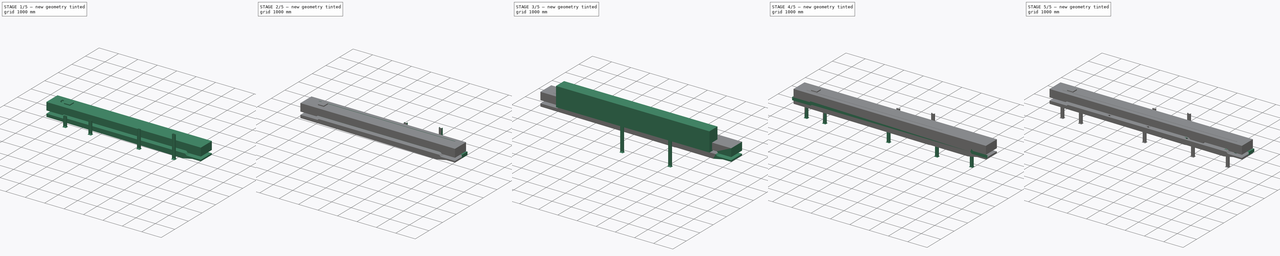
[diagram: build sequence overview — one tinted view per stage of 5, left to right]
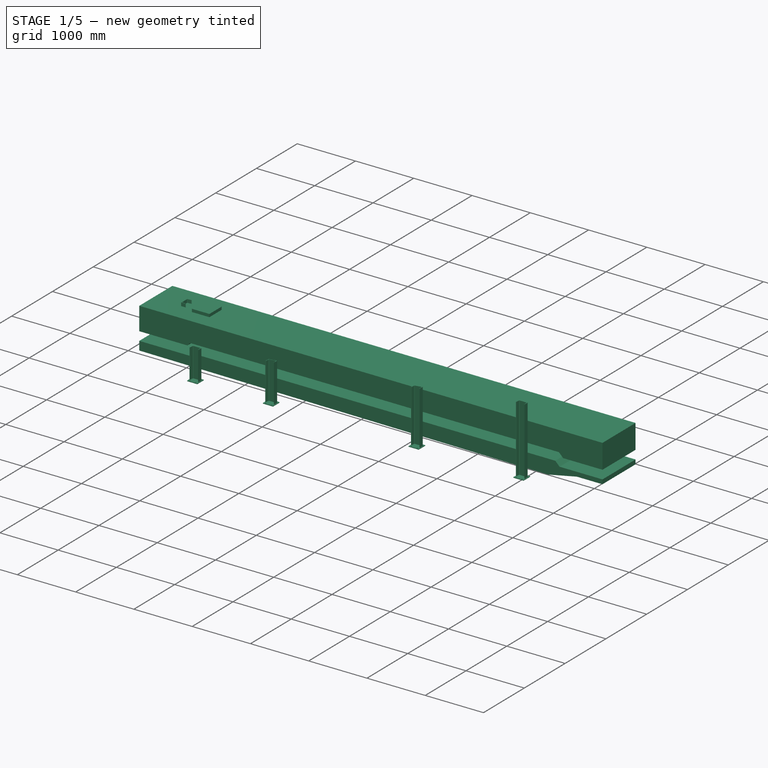
[diagram: stage 1 of 5 — iso view after this stage's code; geometry added in this stage tinted green]
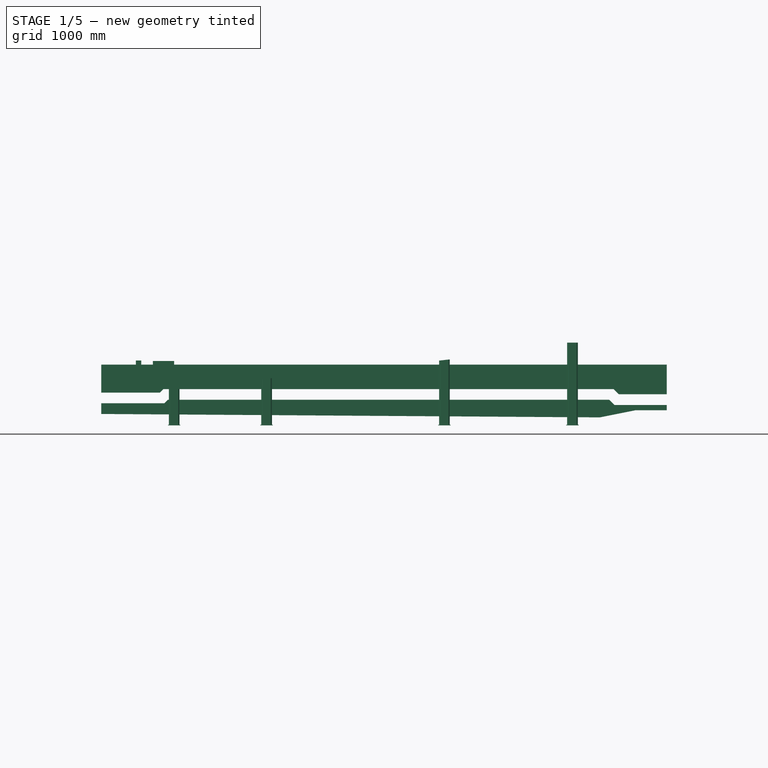
[diagram: stage 1 of 5 — front view after this stage's code; geometry added in this stage tinted green]
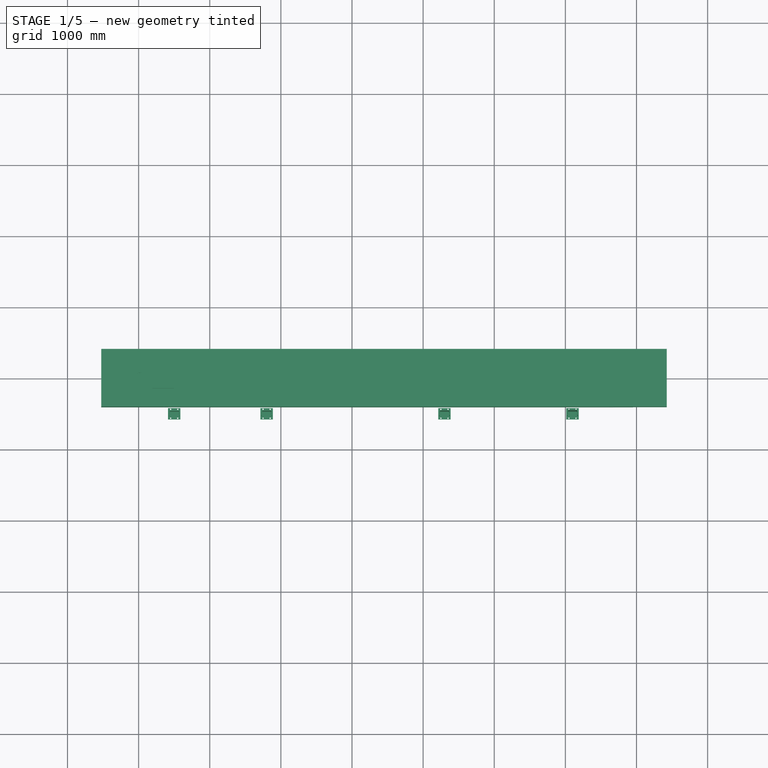
[diagram: stage 1 of 5 — top view after this stage's code; geometry added in this stage tinted green]
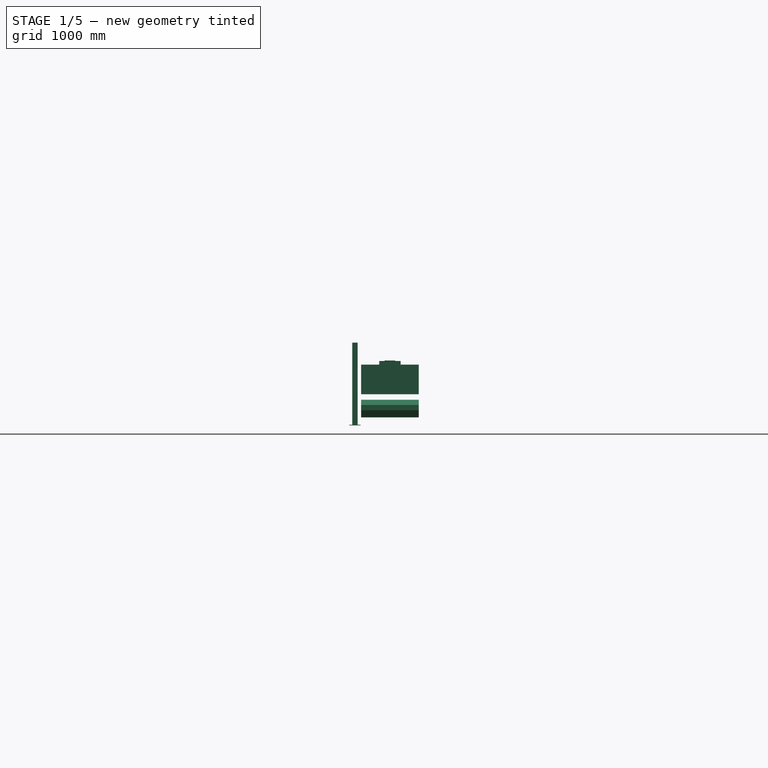
[diagram: stage 1 of 5 — right view after this stage's code; geometry added in this stage tinted green]
FCSTD DOCUMENT  (FreeCAD 1.0R39109 (Git))
Label: assy_500
License: All rights reserved
LicenseURL: https://en.wikipedia.org/wiki/All_rights_reserved
objects: Sketcher::SketchObject×42, Part::Extrusion×36, App::Part×34, Part::FeaturePython×32, Part::MultiFuse×20, Part::Feature×18, Part::Mirroring×10, Part::Sweep×8, Spreadsheet::Sheet×4, Part::Compound×2, Part::Cut×2
note: 208 computed .brp shape members not serialized (recipe doc carries the construction recipe); baked Part::Feature solids carry a one-line shape summary decoded from their .brp

FEATURE [App::Part] Part027  label="Skirt001"
  Group = -> [Part025,Mirror007]
  Origin = -> Origin032
  Placement = pos=(0,0,-13) rot=(0,0,1;0rad)
FEATURE [App::Part] Part028  label="Frame001"
  Group = -> [Part020,Mirror005,Sketch028,Sketch029]
  Origin = -> Origin033
FEATURE [Sketcher::SketchObject] Sketch036
  ArcFitTolerance = 0
  FullyConstrained = false
  MakeInternals = false
  Placement = pos=(0,0,0) rot=(1,0,0;1.5708rad)
  expr: Constraints[21] = Spreadsheet002.C0 + 425
  sketch-geometry (8):
    g0: LineSegment StartX=-525 StartY=-89 StartZ=0 EndX=-525 EndY=305 EndZ=0
    g1: LineSegment StartX=-525 StartY=305 StartZ=0 EndX=7425 EndY=305 EndZ=0
    g2: LineSegment StartX=7425 StartY=305 StartZ=0 EndX=7425 EndY=-112 EndZ=0
    g3: LineSegment StartX=7425 StartY=-112 StartZ=0 EndX=6750 EndY=-112 EndZ=0
    g4: LineSegment StartX=6750 StartY=-112 StartZ=0 EndX=6677 EndY=-39 EndZ=0
    g5: LineSegment StartX=6677 StartY=-39 StartZ=0 EndX=349.997 EndY=-39 EndZ=0
    g6: LineSegment StartX=349.997 StartY=-39 StartZ=0 EndX=299.997 EndY=-89 EndZ=0
    g7: LineSegment StartX=299.997 StartY=-89 StartZ=0 EndX=-525 EndY=-89 EndZ=0
  constraints (23):
    c: Vertical(g0)
    c: Coincident(g0,g1)
    c: Horizontal(g1)
    c: Coincident(g1,g2)
    c: Vertical(g2)
    c: Coincident(g2,g3)
    c: Horizontal(g3)
    c: Coincident(g3,g4)
    c: Coincident(g4,g5)
    c: Horizontal(g5)
    c: DistanceY(g-1,g2) = -112
    c: Angle(g3,g4) = 2.35619
    c: DistanceY(g0,g0) = 394
    c: Coincident(g5,g6)
    c: Coincident(g7,g6)
    c: Coincident(g7,g0)
    c: Horizontal(g7)
    c: DistanceX(g0,g-1) = 525
    c: DistanceY(g0,g-1) = 89
    c: Angle(g-1,g6) = 0.785398
    c: DistanceX(g6,g6) = 50
    c: DistanceX(g-1,g1) = 7425
    c: DistanceX(g3,g3) = 675
FEATURE [Part::Extrusion] Extrude033
  Base = -> Sketch036
  Dir = (0,-1,2e-16)
  DirMode = 2
  FaceMakerClass = Part::FaceMakerBullseye
  FaceMakerMode = 3
  LengthFwd = 810
  LengthRev = 0
  Solid = true
  Symmetric = true
FEATURE [App::Part] Part031  label="Belt001"
  Group = -> [Sketch043,Extrude034,Sketch040,Sketch039,Sketch041,Sketch042,Sketch044,Sketch045,Sketch046,Sweep006,Extrude035,Sweep007,Extrude036,Sweep008,Extrude037]
  Origin = -> Origin036
  Placement = pos=(0,0,-30) rot=(0,0,1;0rad)
FEATURE [Part::FeaturePython] BasePlate004  # WARN: FeaturePython — macro-defined, semantics opaque (R4)
  B = 175
  D = 19
  H = 160
  b1 = 25
  h1 = 30
  sface = 0
FEATURE [Part::Extrusion] Extrude038
  Base = -> BasePlate004
  Dir = (0,0,1)
  DirMode = 2
  FaceMakerClass = Part::FaceMakerBullseye
  FaceMakerMode = 3
  LengthFwd = 10
  LengthRev = 0
  Solid = true
  Symmetric = false
FEATURE [Part::FeaturePython] Channel004  # WARN: FeaturePython — macro-defined, semantics opaque (R4)
  B = 75
  H = 150
  L = 362.703
  Solid = true
  g0 = 7.85
  mass = 6.13145
  size = 3
  standard = SS
  expr: L = str(Spreadsheet002.Ht - 140 - 450 * tan(Spreadsheet002.k))
FEATURE [Part::FeaturePython] BasePlate005  # WARN: FeaturePython — macro-defined, semantics opaque (R4)
  B = 175
  D = 19
  H = 160
  b1 = 25
  h1 = 30
  sface = 0
FEATURE [Part::FeaturePython] Channel005  # WARN: FeaturePython — macro-defined, semantics opaque (R4)
  B = 75
  H = 150
  L = 512.552
  Solid = true
  g0 = 7.85
  mass = 8.66463
  size = 3
  standard = SS
  expr: L = str(Spreadsheet002.Ht - 90 + 500 * tan(Spreadsheet002.k))
FEATURE [Part::Extrusion] Extrude039
  Base = -> BasePlate005
  Dir = (0,0,1)
  DirMode = 2
  FaceMakerClass = Part::FaceMakerBullseye
  FaceMakerMode = 3
  LengthFwd = 10
  LengthRev = 0
  Solid = true
  Symmetric = false
FEATURE [Part::MultiFuse] Fusion021  label="PostC005"
  Placement = pos=(500,-492.5,-550) rot=(0,0,-1;1.5708rad)
  Shapes = -> [Extrude039,Channel005]
  expr: .Placement.Base.z = -Spreadsheet002.Ht
FEATURE [Part::FeaturePython] BasePlate006  # WARN: FeaturePython — macro-defined, semantics opaque (R4)
  B = 175
  D = 19
  H = 160
  b1 = 25
  h1 = 30
  sface = 0
FEATURE [Part::FeaturePython] Channel006  # WARN: FeaturePython — macro-defined, semantics opaque (R4)
  B = 75
  H = 150
  L = 1164.71
  Solid = true
  g0 = 7.85
  mass = 19.6893
  size = 3
  standard = SS
  expr: L = str(Spreadsheet002.Ht - 100 + (Spreadsheet002.C0 - 200) * tan(Spreadsheet002.k))
FEATURE [Part::Extrusion] Extrude040
  Base = -> BasePlate006
  Dir = (0,0,1)
  DirMode = 2
  FaceMakerClass = Part::FaceMakerBullseye
  FaceMakerMode = 3
  LengthFwd = 10
  LengthRev = 0
  Solid = true
  Symmetric = false
FEATURE [Part::MultiFuse] Fusion022  label="ヘッド部001"
  Placement = pos=(6100,-492.5,-550) rot=(0,0,-1;1.5708rad)
  Shapes = -> [Extrude040,Channel006]
  expr: .Placement.Base.x = Spreadsheet002.C0 - 900
  expr: .Placement.Base.z = -Spreadsheet002.Ht
FEATURE [Part::FeaturePython] BasePlate007  # WARN: FeaturePython — macro-defined, semantics opaque (R4)
  B = 175
  D = 19
  H = 160
  b1 = 25
  h1 = 30
  sface = 0
FEATURE [Part::Extrusion] Extrude041
  Base = -> BasePlate007
  Dir = (0,0,1)
  DirMode = 2
  FaceMakerClass = Part::FaceMakerBullseye
  FaceMakerMode = 3
  LengthFwd = 10
  LengthRev = 0
  Solid = true
  Symmetric = false
FEATURE [Part::FeaturePython] Channel007  # WARN: FeaturePython — macro-defined, semantics opaque (R4)
  B = 75
  H = 150
  L = 949.396
  Solid = true
  g0 = 7.85
  mass = 16.0494
  size = 3
  standard = SS
  expr: L = str(Spreadsheet002.Ht + (Spreadsheet002.C0 - (2700 + 500)) * tan(Spreadsheet002.k))
FEATURE [Part::MultiFuse] Fusion023  label="PostC006"
  Placement = pos=(4300,-492.5,-550) rot=(0,0,-1;1.5708rad)
  Shapes = -> [Extrude041,Channel007]
  expr: .Placement.Base.x = Spreadsheet002.C0 - 2700
  expr: .Placement.Base.z = -Spreadsheet002.Ht
FEATURE [Part::FeaturePython] Array007  # Draft array (typed FeaturePython)
  Angle = 360
  ArrayType = 0
  Axis = (0,0,1)
  Base = -> Fusion023
  Center = (0,0,0)
  Count = 2
  Fuse = false
  IntervalAxis = (0,0,0)
  IntervalX = (-2500,0,0)
  IntervalY = (0,100,0)
  IntervalZ = (0,0,100)
  NumberCircles = 3
  NumberPolar = 5
  NumberX = 2
  NumberY = 1
  NumberZ = 1
  RadialDistance = 50
  Symmetry = 1
  TangentialDistance = 25
  expr: NumberX = (Spreadsheet002.C0 - 3200) / 2500
FEATURE [Sketcher::SketchObject] Sketch047
  ArcFitTolerance = 0
  FullyConstrained = true
  MakeInternals = false
  Placement = pos=(0,0,0) rot=(1,0,0;1.5708rad)
  expr: Constraints[11] = -90 + 500 * tan(Spreadsheet002.k)
  expr: Constraints[8] = 180 - Spreadsheet002.k
  expr: Constraints[9] = Spreadsheet002.C0 - 1000
  sketch-geometry (4):
    g0: LineSegment StartX=425 StartY=-37.4479 StartZ=0 EndX=6425 EndY=593.178 EndZ=0
    g1: LineSegment StartX=6425 StartY=593.178 StartZ=0 EndX=6425 EndY=1593.18 EndZ=0
    g2: LineSegment StartX=6425 StartY=1593.18 StartZ=0 EndX=425 EndY=1593.18 EndZ=0
    g3: LineSegment StartX=425 StartY=1593.18 StartZ=0 EndX=425 EndY=-37.4479 EndZ=0
  constraints (12):
    c: Coincident(g0,g1)
    c: Vertical(g1)
    c: Coincident(g1,g2)
    c: Horizontal(g2)
    c: Coincident(g2,g3)
    c: Coincident(g3,g0)
    c: Vertical(g3)
    c: DistanceX(g-1,g0) = 425
    c: Angle(g0,g-1) = 3.03687
    c: DistanceX(g2,g2) = 6000
    c: DistanceY(g1,g1) = 1000
    c: DistanceY(g-1,g0) = -37.4479
FEATURE [Part::Extrusion] Extrude042
  Base = -> Sketch047
  Dir = (0,-1,2e-16)
  DirMode = 2
  FaceMakerClass = Part::FaceMakerBullseye
  FaceMakerMode = 3
  LengthFwd = 600
  LengthRev = 0
  Solid = true
  Symmetric = false
FEATURE [Part::Cut] Cut003
  Base = -> Array007
  Tool = -> Extrude042
FEATURE [Part::Feature] Self_Aligning_Return_501
  Placement = pos=(1000,0,-210) rot=(0,0,1;1.5708rad)
  shape: bbox 258 x 790 x 295 mm, 133 faces, 4 solids (baked)
FEATURE [App::Part] Part026  label="Pulleys001"
  Group = -> [Array006,Array005,Part024,Part022,CPM2_4146,Self_Aligning_Carrier_501,Self_Aligning_Return_501]
  Origin = -> Origin031
FEATURE [Sketcher::SketchObject] Sketch048
  ArcFitTolerance = 1e-06
  FullyConstrained = true
  MakeInternals = false
  Placement = pos=(0,0,0) rot=(1,0,0;1.5708rad)
  sketch-geometry (4):
    g0: LineSegment StartX=200 StartY=305 StartZ=0 EndX=500 EndY=305 EndZ=0
    g1: LineSegment StartX=500 StartY=305 StartZ=0 EndX=500 EndY=355 EndZ=0
    g2: LineSegment StartX=500 StartY=355 StartZ=0 EndX=200 EndY=355 EndZ=0
    g3: LineSegment StartX=200 StartY=355 StartZ=0 EndX=200 EndY=305 EndZ=0
  constraints (12):
    c: Coincident(g0,g1)
    c: Coincident(g1,g2)
    c: Coincident(g2,g3)
    c: Coincident(g3,g0)
    c: Horizontal(g0)
    c: Horizontal(g2)
    c: Vertical(g1)
    c: Vertical(g3)
    c: DistanceY(g3,g3) = 50
    c: DistanceX(g2,g2) = 300
    c: Distance(g2,g-2) = 200
    c: DistanceY(g-1,g0) = 305
FEATURE [Part::Extrusion] Extrude043
  Base = -> Sketch048
  Dir = (0,-1,2e-16)
  DirMode = 2
  FaceMakerClass = Part::FaceMakerBullseye
  FaceMakerMode = 3
  LengthFwd = 300
  LengthRev = 0
  Solid = true
  Symmetric = true
FEATURE [Part::MultiFuse] Fusion024
  Refine = true
  Shapes = -> [Extrude033,Extrude043]
FEATURE [App::Part] Part029  label="Cover001"
  Group = -> [Sketch037,Extrude033,Extrude043,Sketch048,Sketch036,Fusion024]
  Origin = -> Origin034
FEATURE [Part::Extrusion] Extrude044
  Base = -> Sketch038
  Dir = (0,-1,2e-16)
  DirMode = 2
  FaceMakerClass = Part::FaceMakerBullseye
  FaceMakerMode = 3
  LengthFwd = 810
  LengthRev = 0
  Solid = true
  Symmetric = true
FEATURE [App::Part] Part030  label="waterReceptacle001"
  Group = -> [Sketch038,Extrude044]
  Origin = -> Origin035
FEATURE [App::Part] Part032  label="body001"
  Group = -> [Part031,Part030,Part029,Part028,Part027,Part026]
  Origin = -> Origin037
  Placement = pos=(0,0,0) rot=(0,1,0;-0.10472rad)
  expr: .Placement.Rotation.Angle = -Spreadsheet002.k
FEATURE [App::Part] Part021  label="500B_motorpulley001"
  Group = -> [Spreadsheet002,Part032,Part034]
  Origin = -> Origin024
  Placement = pos=(8917,0,550) rot=(0,0,1;0rad)
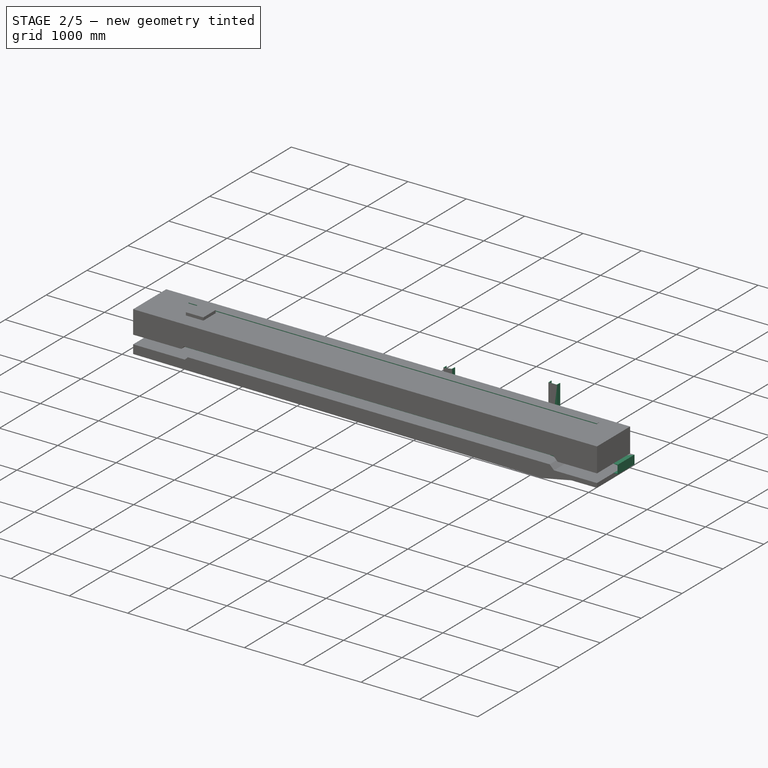
[diagram: stage 2 of 5 — iso view after this stage's code; geometry added in this stage tinted green]
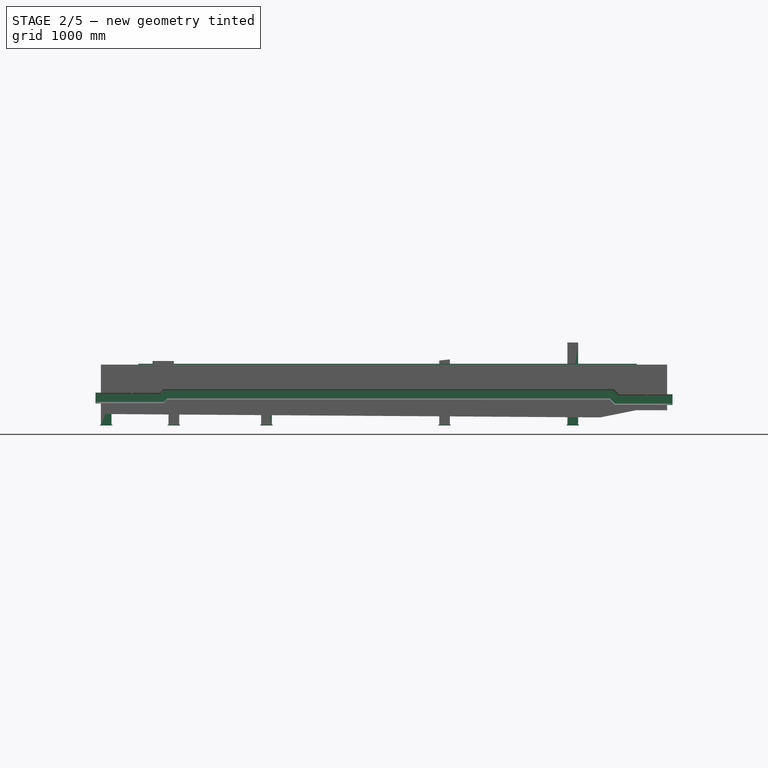
[diagram: stage 2 of 5 — front view after this stage's code; geometry added in this stage tinted green]
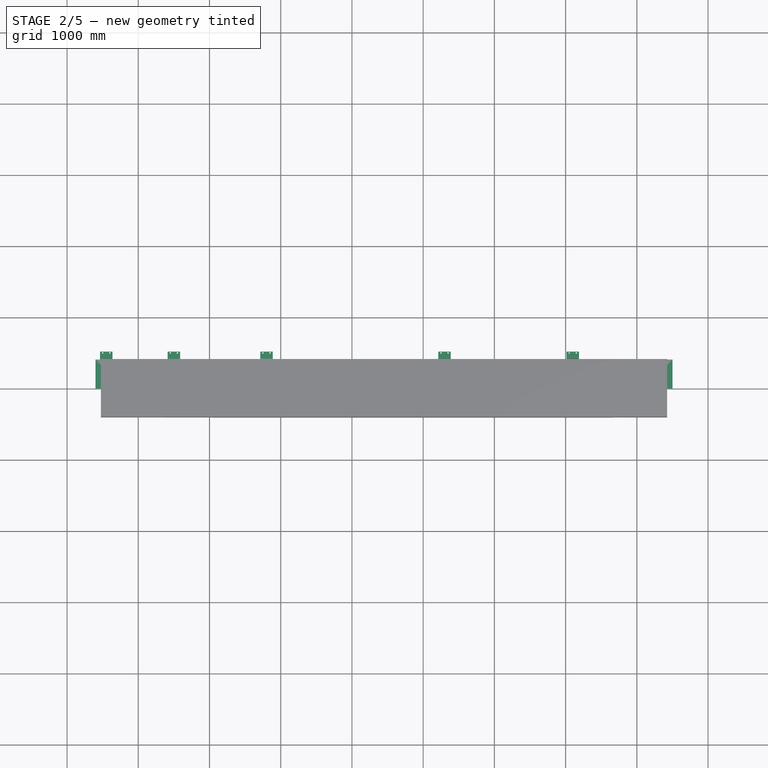
[diagram: stage 2 of 5 — top view after this stage's code; geometry added in this stage tinted green]
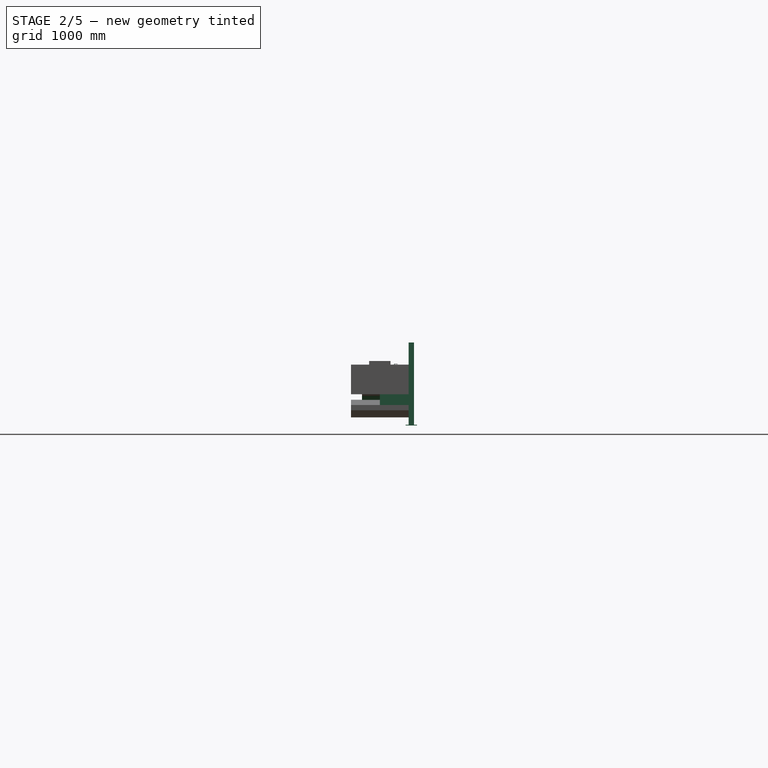
[diagram: stage 2 of 5 — right view after this stage's code; geometry added in this stage tinted green]
FEATURE [Part::Feature] Part__Feature004  label="UCP208FC001"
  Placement = pos=(6500,-360.5,-250.18) rot=(0,0.707107,-0.707107;3.14159rad)
  shape: bbox 184 x 86 x 106.1 mm, 117 faces (baked)
  expr: .Placement.Base.x = Spreadsheet002.C0 - 500
FEATURE [Sketcher::SketchObject] Sketch029
  ArcFitTolerance = 0
  FullyConstrained = true
  MakeInternals = false
  MapMode = 5
  Placement = pos=(-105.6,-410.5,-87) rot=(1,0,0;3.14159rad)
FEATURE [Sketcher::SketchObject] Sketch030
  ArcFitTolerance = 0
  FullyConstrained = true
  MakeInternals = false
  MapMode = 5
  Placement = pos=(0,0,0) rot=(1,0,0;1.5708rad)
  expr: Constraints[14] = Spreadsheet002.C0
  sketch-geometry (6):
    g0: LineSegment StartX=-600 StartY=-89 StartZ=0 EndX=300 EndY=-89 EndZ=0
    g1: LineSegment StartX=300 StartY=-89 StartZ=0 EndX=350 EndY=-39 EndZ=0
    g2: LineSegment StartX=350 StartY=-39 StartZ=0 EndX=6677 EndY=-39 EndZ=0
    g3: LineSegment StartX=6677 StartY=-39 StartZ=0 EndX=6750 EndY=-112 EndZ=0
    g4: LineSegment StartX=6750 StartY=-112 StartZ=0 EndX=7500 EndY=-112 EndZ=0
    g5: LineSegment [constr] StartX=0 StartY=0 StartZ=0 EndX=7000 EndY=0 EndZ=0
  constraints (19):
    c: Horizontal(g0)
    c: Coincident(g0,g1)
    c: Coincident(g1,g2)
    c: Horizontal(g2)
    c: Coincident(g2,g3)
    c: Coincident(g3,g4)
    c: Horizontal(g4)
    c: DistanceX(g0,g-1) = 600
    c: DistanceX(g-1,g0) = 300
    c: Angle(g1,g0) = 2.35619
    c: Angle(g4,g3) = 2.35619
    c: PointOnObject(g5,g-1)
    c: Coincident(g5,g-1)
    c: Distance(g5,g4) = 112
    c: DistanceX(g5,g5) = 7000
    c: DistanceX(g5,g4) = 500
    c: DistanceX(g3,g5) = 250
    c: DistanceY(g0,g1) = 50
    c: DistanceY(g-1,g0) = -89
FEATURE [Part::Sweep] Sweep005
  Frenet = false
  Placement = pos=(0,-405,0) rot=(0,0,1;0rad)
  Sections = -> [ChannelSteel003]
  Solid = true
  Spine = -> Sketch030 [Edge1,Edge2,Edge3,Edge4,Edge5]
  Transition = 1
  expr: .Placement.Base.y = -Spreadsheet002.W0 / 2
FEATURE [Sketcher::SketchObject] Sketch031
  ArcFitTolerance = 0
  AttachmentSupport = -> [Sweep005]
  FullyConstrained = true
  MakeInternals = false
  MapMode = 5
  Placement = pos=(0,-405,-89) rot=(0,0,1;0rad)
  sketch-geometry (4):
    g0: LineSegment StartX=-480 StartY=8 StartZ=0 EndX=185 EndY=8 EndZ=0
    g1: LineSegment StartX=185 StartY=8 StartZ=0 EndX=185 EndY=83 EndZ=0
    g2: LineSegment StartX=185 StartY=83 StartZ=0 EndX=-480 EndY=83 EndZ=0
    g3: LineSegment StartX=-480 StartY=83 StartZ=0 EndX=-480 EndY=8 EndZ=0
  constraints (12):
    c: Coincident(g0,g1)
    c: Coincident(g1,g2)
    c: Coincident(g2,g3)
    c: Coincident(g3,g0)
    c: Horizontal(g0)
    c: Horizontal(g2)
    c: Vertical(g1)
    c: Vertical(g3)
    c: DistanceY(g1,g1) = 75
    c: DistanceY(g-1,g0) = 8
    c: DistanceX(g-1,g0) = 185
    c: DistanceX(g0,g0) = 665
FEATURE [Sketcher::SketchObject] Sketch032
  ArcFitTolerance = 0
  AttachmentSupport = -> [Sweep005]
  FullyConstrained = false
  MakeInternals = false
  MapMode = 5
  Placement = pos=(0,-405,-112) rot=(0,0,1;0rad)
  expr: Constraints[9] = Spreadsheet002.C0
  sketch-geometry (5):
    g0: LineSegment StartX=6885 StartY=16.2326 StartZ=0 EndX=7115 EndY=16.2326 EndZ=0
    g1: LineSegment StartX=7115 StartY=16.2326 StartZ=0 EndX=7115 EndY=96.2326 EndZ=0
    g2: LineSegment StartX=7115 StartY=96.2326 StartZ=0 EndX=6885 EndY=96.2326 EndZ=0
    g3: LineSegment StartX=6885 StartY=96.2326 StartZ=0 EndX=6885 EndY=16.2326 EndZ=0
    g4: LineSegment [constr] StartX=7000 StartY=284.577 StartZ=0 EndX=7000 EndY=-153.677 EndZ=0
  constraints (13):
    c: Coincident(g0,g1)
    c: Coincident(g1,g2)
    c: Coincident(g2,g3)
    c: Coincident(g3,g0)
    c: Horizontal(g0)
    c: Horizontal(g2)
    c: Vertical(g1)
    c: Vertical(g3)
    c: Vertical(g4)
    c: DistanceX(g-2,g4) = 7000
    c: DistanceY(g1,g1) = 80
    c: DistanceX(g0,g0) = 230
    c: DistanceX(g4,g0) = 115
FEATURE [Part::Extrusion] Extrude027
  Base = -> Sketch032
  Dir = (0,0,1)
  DirMode = 2
  FaceMakerClass = Part::FaceMakerBullseye
  FaceMakerMode = 3
  LengthFwd = 12
  LengthRev = 0
  Solid = true
  Symmetric = false
FEATURE [Sketcher::SketchObject] Sketch033
  ArcFitTolerance = 0
  AttachmentSupport = -> [Sweep005]
  FullyConstrained = false
  MakeInternals = false
  MapMode = 5
  Placement = pos=(0,-405,-189) rot=(1,0,0;3.14159rad)
  expr: Constraints[13] = Spreadsheet002.C0 - 500
  sketch-geometry (5):
    g0: LineSegment StartX=6400 StartY=-9 StartZ=0 EndX=6600 EndY=-9 EndZ=0
    g1: LineSegment StartX=6600 StartY=-9 StartZ=0 EndX=6600 EndY=-79 EndZ=0
    g2: LineSegment StartX=6600 StartY=-79 StartZ=0 EndX=6400 EndY=-79 EndZ=0
    g3: LineSegment StartX=6400 StartY=-79 StartZ=0 EndX=6400 EndY=-9 EndZ=0
    g4: LineSegment [constr] StartX=6500 StartY=33.7597 StartZ=0 EndX=6500 EndY=-194.785 EndZ=0
  constraints (14):
    c: Coincident(g0,g1)
    c: Coincident(g1,g2)
    c: Coincident(g2,g3)
    c: Coincident(g3,g0)
    c: Horizontal(g0)
    c: Horizontal(g2)
    c: Vertical(g1)
    c: Vertical(g3)
    c: Vertical(g4)
    c: DistanceX(g0,g0) = 200
    c: DistanceY(g3,g3) = 70
    c: DistanceX(g4,g0) = 100
    c: DistanceY(g-1,g0) = -9
    c: DistanceX(g-1,g4) = 6500
FEATURE [Part::Extrusion] Extrude028
  Base = -> Sketch033
  Dir = (0,0,-1)
  DirMode = 2
  FaceMakerClass = Part::FaceMakerBullseye
  FaceMakerMode = 3
  LengthFwd = 30
  LengthRev = 0
  Solid = true
  Symmetric = false
FEATURE [Part::FeaturePython] ChannelSteel004  # WARN: FeaturePython — macro-defined, semantics opaque (R4)
  B = 75
  H = 150
  L = 1000
  Placement = pos=(-600,0,-239) rot=(0,0,1;0rad)
  Solid = false
  g0 = 7.85
  mass = 0
  size = 3
  standard = SS
  t1 = 6.5
  t2 = 10
FEATURE [Part::Extrusion] Extrude029
  Base = -> ChannelSteel004
  Dir = (0,1,0)
  DirMode = 2
  FaceMakerClass = Part::FaceMakerBullseye
  FaceMakerMode = 3
  LengthFwd = 405
  LengthRev = 0
  Reversed = true
  Solid = false
  Symmetric = false
  expr: LengthFwd = Spreadsheet002.B12 / 2
FEATURE [Part::FeaturePython] ChannelSteel005  # WARN: FeaturePython — macro-defined, semantics opaque (R4)
  B = 75
  H = 150
  L = 1000
  Placement = pos=(7500,0,-112) rot=(0,1,0;3.14159rad)
  Solid = false
  g0 = 7.85
  mass = 0
  size = 3
  standard = SS
  t1 = 6.5
  t2 = 10
  expr: .Placement.Base.x = Spreadsheet002.C0 + 500
FEATURE [Part::Extrusion] Extrude030
  Base = -> ChannelSteel005
  Dir = (0,1,0)
  DirMode = 2
  FaceMakerClass = Part::FaceMakerBullseye
  FaceMakerMode = 3
  LengthFwd = 405
  LengthRev = 0
  Reversed = true
  Solid = false
  Symmetric = false
  expr: LengthFwd = Spreadsheet002.W0 / 2
FEATURE [Part::MultiFuse] Fusion015
  Refine = true
  Shapes = -> [Sweep005,Extrude029]
FEATURE [Part::Extrusion] Extrude031
  Base = -> Sketch031
  Dir = (0,0,1)
  DirMode = 2
  FaceMakerClass = Part::FaceMakerBullseye
  FaceMakerMode = 3
  LengthFwd = 12
  LengthRev = 0
  Solid = true
  Symmetric = false
FEATURE [Part::MultiFuse] Fusion016
  Shapes = -> [Fusion015,Extrude031]
FEATURE [Part::MultiFuse] Fusion017
  Refine = true
  Shapes = -> [Fusion016,Extrude030]
FEATURE [Part::MultiFuse] Fusion018
  Shapes = -> [Fusion017,Extrude027]
FEATURE [Part::MultiFuse] Fusion019
  Refine = true
  Shapes = -> [Fusion018,Extrude028]
FEATURE [App::Part] Part020  label="本体001"
  Group = -> [Fusion015,ChannelSteel005,ChannelSteel004,ChannelSteel003,Sweep005,Sketch030,Sketch031,Extrude028,Extrude029,Extrude031,Extrude030,Extrude027,Sketch032,Sketch033,Fusion017,Fusion018,Fusion016,Fusion019]
  Origin = -> Origin023
FEATURE [Part::Mirroring] Mirror005  label="本体 (mirrored)001"
  Base = (-1000,0,0)
  Normal = (0,-1,0)
  Source = -> Part020
FEATURE [App::Part] Part023  label="pulley001"
  Group = -> [Take_upPulley002]
  Origin = -> Origin028
  Placement = pos=(0,0,0) rot=(0,1,0;2.1293rad)
FEATURE [Spreadsheet::Sheet] Spreadsheet003  label="Spreadsheet_takeup001"
  cells = A1='beltWidth; B1='takeup d0; C1='d1=d0+10; D1='pulley D0; E1='puller L0; F1='puller C0; G1='puller B0; H1='takeup Y; A2(W0)=600; B2(d0)=20; C2(d1)==d0 + 10; D2(D0)=300; E2(L0)=650; F2(C0)=768; G2(B0)=50; H2(Y)=410; A3=400; B3=20; C3==d0 + 10; D3=300; E3=450; F3=568; G3=50; H3=310; A4=450; B4=20; C4==d0 + 10; D4=300; E4=500; F4=618; G4=50; H4=335; A5=500; B5=20; C5==d0 + 10; D5=300; E5=550; F5=668; G5=50; H5=360; A6=600; B6=20; C6==d0 + 10; D6=300; E6=650; F6=768; G6=50; H6=410; A7=700; B7=20; C7==d0 + 10; D7=300; E7=750; F7=868; G7=50; H7=460; A8=750; B8=20; C8==d0 + 10; D8=300; E8=800; F8=918; G8=50; H8=485; A9=800; B9=20; C9==d0 + 10; D9=300; E9=850; F9=968; G9=50; H9=510; A10=900; B10=20; C10==d0 + 10; D10=300; E10=950; F10=1068; G10=50; H10=560; A11=1000; B11=20; C11==d0 + 10; D11=300; E11=1050; F11=1168; G11=50; H11=610
FEATURE [App::Part] Part022  label="takeUpAssy20d001"
  Group = -> [_______________________________20_v002,Mirror006,Compound001,Sketch034,Part023,Spreadsheet003]
  Origin = -> Origin027
FEATURE [App::Part] Part024  label="bendPulley001"
  Group = -> [BendPulley001,Part__Feature004,Part__Mirroring002]
  Origin = -> Origin029
  Placement = pos=(0,0,-8) rot=(0,0,1;0rad)
FEATURE [Sketcher::SketchObject] Sketch035
  ArcFitTolerance = 0
  FullyConstrained = true
  MakeInternals = false
  Placement = pos=(0,0,0) rot=(0.57735,0.57735,0.57735;2.0944rad)
  sketch-geometry (6):
    g0: LineSegment StartX=200 StartY=201 StartZ=0 EndX=206 EndY=201 EndZ=0
    g1: LineSegment StartX=206 StartY=201 StartZ=0 EndX=206 EndY=310 EndZ=0
    g2: LineSegment StartX=200 StartY=316 StartZ=0 EndX=200 EndY=201 EndZ=0
    g3: LineSegment StartX=250 StartY=316 StartZ=0 EndX=250 EndY=310 EndZ=0
    g4: LineSegment StartX=250 StartY=310 StartZ=0 EndX=206 EndY=310 EndZ=0
    g5: LineSegment StartX=200 StartY=316 StartZ=0 EndX=250 EndY=316 EndZ=0
  constraints (18):
    c: Coincident(g0,g1)
    c: Coincident(g2,g0)
    c: Horizontal(g0)
    c: Vertical(g1)
    c: Vertical(g2)
    c: DistanceX(g-2,g2) = 200
    c: Vertical(g3)
    c: Coincident(g3,g4)
    c: Horizontal(g4)
    c: Coincident(g1,g4)
    c: Coincident(g5,g2)
    c: Coincident(g5,g3)
    c: Horizontal(g5)
    c: DistanceY(g3,g3) = 6
    c: DistanceX(g5,g5) = 50
    c: DistanceX(g0,g0) = 6
    c: DistanceY(g2,g2) = 115
    c: DistanceY(g-1,g2) = 316
FEATURE [Part::Extrusion] Extrude032
  Base = -> Sketch035
  Dir = (1,0,0)
  DirMode = 2
  FaceMakerClass = Part::FaceMakerBullseye
  FaceMakerMode = 3
  LengthFwd = 7000
  LengthRev = 0
  Solid = true
  Symmetric = false
  expr: LengthFwd = Spreadsheet002.C0
FEATURE [Sketcher::SketchObject] Sketch037
  ArcFitTolerance = 0
  FullyConstrained = true
  MakeInternals = false
  MapMode = 5
  Placement = pos=(0,9.13e-14,411) rot=(0,0,1;0rad)
  expr: Constraints[10] = .Constraints.w / 2
  sketch-geometry (4):
    g0: LineSegment StartX=400 StartY=-200 StartZ=0 EndX=800 EndY=-200 EndZ=0
    g1: LineSegment StartX=800 StartY=-200 StartZ=0 EndX=800 EndY=200 EndZ=0
    g2: LineSegment StartX=800 StartY=200 StartZ=0 EndX=400 EndY=200 EndZ=0
    g3: LineSegment StartX=400 StartY=200 StartZ=0 EndX=400 EndY=-200 EndZ=0
  constraints (12):
    c: Coincident(g0,g1)
    c: Coincident(g1,g2)
    c: Coincident(g2,g3)
    c: Coincident(g3,g0)
    c: Horizontal(g0)
    c: Horizontal(g2)
    c: Vertical(g1)
    c: Vertical(g3)
    c: DistanceX(g2,g2) = 400
    c: DistanceY(g3,g3) = 400  'w'
    c: DistanceY(g-1,g2) = 200
    c: DistanceX(g-1,g2) = 400
FEATURE [Sketcher::SketchObject] Sketch038
  ArcFitTolerance = 0
  FullyConstrained = true
  MakeInternals = false
  Placement = pos=(0,0,0) rot=(1,0,0;1.5708rad)
  expr: Constraints[24] = Spreadsheet002.C0 + 425
  sketch-geometry (10):
    g0: LineSegment StartX=-525 StartY=-239 StartZ=0 EndX=362 EndY=-239 EndZ=0
    g1: LineSegment StartX=362 StartY=-239 StartZ=0 EndX=412 EndY=-189 EndZ=0
    g2: LineSegment StartX=412 StartY=-189 StartZ=0 EndX=6615 EndY=-189 EndZ=0
    g3: LineSegment StartX=6615 StartY=-189 StartZ=0 EndX=6688 EndY=-262 EndZ=0
    g4: LineSegment StartX=6688 StartY=-262 StartZ=0 EndX=7425 EndY=-262 EndZ=0
    g5: LineSegment StartX=6985 StartY=-337 StartZ=0 EndX=6485 EndY=-437 EndZ=0
    g6: LineSegment StartX=6485 StartY=-437 StartZ=0 EndX=-525 EndY=-389 EndZ=0
    g7: LineSegment StartX=-525 StartY=-389 StartZ=0 EndX=-525 EndY=-239 EndZ=0
    g8: LineSegment StartX=6985 StartY=-337 StartZ=0 EndX=7425 EndY=-337 EndZ=0
    g9: LineSegment StartX=7425 StartY=-337 StartZ=0 EndX=7425 EndY=-262 EndZ=0
  constraints (30):
    c: Horizontal(g0)
    c: Coincident(g0,g1)
    c: Coincident(g1,g2)
    c: Horizontal(g2)
    c: Coincident(g2,g3)
    c: Coincident(g3,g4)
    c: Horizontal(g4)
    c: Coincident(g6,g7)
    c: Coincident(g7,g0)
    c: Vertical(g7)
    c: DistanceY(g7,g7) = 150
    c: DistanceY(g0,g-1) = 239
    c: Angle(g1,g0) = 2.35619
    c: Angle(g4,g3) = 2.35619
    c: DistanceY(g-1,g3) = -262
    c: DistanceY(g5,g3) = 75
    c: DistanceX(g5,g5) = 500
    c: DistanceY(g5,g5) = 100
    c: Horizontal(g8)
    c: Coincident(g9,g8)
    c: Coincident(g9,g4)
    c: Vertical(g9)
    c: Coincident(g8,g5)
    c: DistanceX(g5,g8) = 440
    c: DistanceX(g-2,g8) = 7425
    c: DistanceX(g-2,g0) = 362
    c: DistanceX(g6,g-1) = 525
    c: Coincident(g6,g5)
    c: DistanceX(g3,g3) = 73
    c: DistanceX(g4,g4) = 737
FEATURE [Sketcher::SketchObject] Sketch039
  ArcFitTolerance = 0
  FullyConstrained = true
  MakeInternals = false
  Placement = pos=(0,0,0) rot=(0.57735,0.57735,0.57735;2.0944rad)
  expr: Constraints[1] = Spreadsheet002.B0
  expr: Constraints[2] = Spreadsheet002.D0 / 2
  sketch-geometry (1):
    g0: LineSegment StartX=-250 StartY=180 StartZ=0 EndX=250 EndY=180 EndZ=0
  constraints (3):
    c: Symmetric(g0,g0,g-2)
    c: DistanceX(g0,g0) = 500
    c: Distance(g-1,g0) = 180
FEATURE [Sketcher::SketchObject] Sketch040
  ArcFitTolerance = 0
  FullyConstrained = true
  MakeInternals = false
  Placement = pos=(7000,0,0) rot=(0.57735,0.57735,0.57735;2.0944rad)
  expr: .Placement.Base.x = Spreadsheet002.C0
  expr: Constraints[1] = Spreadsheet002.B0
  expr: Constraints[2] = Spreadsheet002.D0 / 2
  sketch-geometry (1):
    g0: LineSegment StartX=-250 StartY=180 StartZ=0 EndX=250 EndY=180 EndZ=0
  constraints (3):
    c: Symmetric(g0,g0,g-2)
    c: DistanceX(g0,g0) = 500
    c: Distance(g-1,g0) = 180
FEATURE [Sketcher::SketchObject] Sketch041
  ArcFitTolerance = 0
  FullyConstrained = true
  MakeInternals = false
  Placement = pos=(500,0,0) rot=(0.57735,0.57735,0.57735;2.0944rad)
  expr: Constraints[5] = Spreadsheet002.b2
  expr: Constraints[6] = Spreadsheet002.b2
  expr: Constraints[7] = Spreadsheet002.D0 / 2
  expr: Constraints[8] = Spreadsheet002.b1
  sketch-geometry (3):
    g0: LineSegment StartX=-240.351 StartY=234.723 StartZ=0 EndX=-90 EndY=180 EndZ=0
    g1: LineSegment StartX=-90 StartY=180 StartZ=0 EndX=90 EndY=180 EndZ=0
    g2: LineSegment StartX=90 StartY=180 StartZ=0 EndX=240.351 EndY=234.723 EndZ=0
  constraints (9):
    c: Coincident(g0,g1)
    c: Coincident(g1,g2)
    c: Angle(g2,g1) = 2.79253
    c: Angle(g1,g0) = 2.79253
    c: Symmetric(g1,g0,g-2)
    c: Distance(g2) = 160
    c: Distance(g0) = 160
    c: DistanceY(g-1,g1) = 180
    c: DistanceX(g1,g1) = 180
FEATURE [Sketcher::SketchObject] Sketch042
  ArcFitTolerance = 0
  FullyConstrained = true
  MakeInternals = false
  Placement = pos=(6500,0,0) rot=(0.57735,0.57735,0.57735;2.0944rad)
  expr: .Placement.Base.x = Spreadsheet002.C0 - 500
  expr: Constraints[5] = Spreadsheet002.b2
  expr: Constraints[6] = Spreadsheet002.b2
  expr: Constraints[7] = Spreadsheet002.D0 / 2
  expr: Constraints[8] = Spreadsheet002.b1
  sketch-geometry (3):
    g0: LineSegment StartX=-240.351 StartY=234.723 StartZ=0 EndX=-90 EndY=180 EndZ=0
    g1: LineSegment StartX=-90 StartY=180 StartZ=0 EndX=90 EndY=180 EndZ=0
    g2: LineSegment StartX=90 StartY=180 StartZ=0 EndX=240.351 EndY=234.723 EndZ=0
  constraints (9):
    c: Coincident(g0,g1)
    c: Coincident(g1,g2)
    c: Angle(g2,g1) = 2.79253
    c: Angle(g1,g0) = 2.79253
    c: Symmetric(g1,g0,g-2)
    c: Distance(g2) = 160
    c: Distance(g0) = 160
    c: DistanceY(g-1,g1) = 180
    c: DistanceX(g1,g1) = 180
FEATURE [Sketcher::SketchObject] Sketch043
  ArcFitTolerance = 0
  FullyConstrained = true
  MakeInternals = false
  Placement = pos=(7000,0,0) rot=(1,0,0;1.5708rad)
  expr: .Placement.Base.x = Spreadsheet002.C0
  expr: Constraints[0] = Spreadsheet002.D0
  expr: Constraints[10] = Spreadsheet002.Ls
  expr: Constraints[20] = Spreadsheet002.t0
  expr: Constraints[22] = Spreadsheet002.t0
  expr: Constraints[29] = (Spreadsheet002.D0 - Spreadsheet002.d1) / 2
  expr: Constraints[2] = Spreadsheet002.d1
  expr: Constraints[6] = Spreadsheet002.d2 / 2
  expr: Constraints[8] = Spreadsheet002.C0
  sketch-geometry (12):
    g0: ArcOfCircle CenterX=0 CenterY=0 CenterZ=0 NormalX=0 NormalY=0 NormalZ=1 AngleXU=0 Radius=180 StartAngle=4.58871 EndAngle=7.85398
    g1: ArcOfCircle CenterX=-7000 CenterY=30 CenterZ=0 NormalX=0 NormalY=0 NormalZ=1 AngleXU=0 Radius=150 StartAngle=1.5708 EndAngle=4.71239
    g2: LineSegment StartX=-22.205 StartY=-178.625 StartZ=0 EndX=-487.664 EndY=-120.764 EndZ=0
    g3: LineSegment StartX=-500 StartY=-120 StartZ=0 EndX=-7000 EndY=-120 EndZ=0
    g4: ArcOfCircle CenterX=-500 CenterY=-220 CenterZ=0 NormalX=0 NormalY=0 NormalZ=1 AngleXU=0 Radius=100 StartAngle=1.44712 EndAngle=1.5708
    g5: ArcOfCircle CenterX=-7000 CenterY=30 CenterZ=0 NormalX=0 NormalY=0 NormalZ=1 AngleXU=0 Radius=160 StartAngle=1.5708 EndAngle=4.71239
    g6: LineSegment StartX=-7000 StartY=-130 StartZ=0 EndX=-500 EndY=-130 EndZ=0
    g7: ArcOfCircle CenterX=-500 CenterY=-220 CenterZ=0 NormalX=0 NormalY=0 NormalZ=1 AngleXU=0 Radius=90 StartAngle=1.44712 EndAngle=1.5708
    g8: LineSegment StartX=-488.898 StartY=-130.687 StartZ=0 EndX=-23.4385 EndY=-188.549 EndZ=0
    g9: ArcOfCircle CenterX=0 CenterY=0 CenterZ=0 NormalX=0 NormalY=0 NormalZ=1 AngleXU=0 Radius=190 StartAngle=4.58871 EndAngle=7.85398
    g10: LineSegment StartX=0 StartY=180 StartZ=0 EndX=5.82e-14 EndY=190 EndZ=0
    g11: LineSegment StartX=-7000 StartY=180 StartZ=0 EndX=-7000 EndY=190 EndZ=0
  constraints (32):
    c: Diameter(g0) = 360
    c: Coincident(g-1,g0)
    c: Diameter(g1) = 300
    c: Horizontal(g3)
    c: Tangent(g2,g4) = -1.5708
    c: Tangent(g3,g4) = -1.5708
    c: Radius(g4) = 100
    c: Coincident(g1,g3)
    c: DistanceX(g1,g0) = 7000
    c: Vertical(g0,g0)
    c: DistanceX(g4,g0) = 500
    c: Vertical(g1,g1)
    c: Coincident(g5,g1)
    c: Tangent(g5,g6) = -1.5708
    c: Tangent(g6,g7) = 1.5708
    c: Tangent(g8,g9) = -1.5708
    c: PointOnObject(g9,g-2)
    c: Coincident(g10,g0)
    c: Coincident(g10,g9)
    c: Coincident(g9,g0)
    c: DistanceY(g10,g10) = 10
    c: Coincident(g4,g7)
    c: DistanceY(g5,g1) = 10
    c: Vertical(g1,g5)
    c: Coincident(g11,g1)
    c: Coincident(g11,g5)
    c: Tangent(g7,g8) = 1.5708
    c: Vertical(g1,g1)
    c: Parallel(g8,g2)
    c: DistanceY(g-1,g1) = 30
    c: Parallel(g6,g3)
    c: Coincident(g2,g0)
FEATURE [Part::Extrusion] Extrude034
  Base = -> Sketch043
  Dir = (0,-1,2e-16)
  DirMode = 2
  FaceMakerClass = Part::FaceMakerBullseye
  FaceMakerMode = 3
  LengthFwd = 500
  LengthRev = 0
  Solid = true
  Symmetric = true
  expr: LengthFwd = Spreadsheet002.B0
FEATURE [Sketcher::SketchObject] Sketch044
  ArcFitTolerance = 0
  FullyConstrained = true
  MakeInternals = false
  Placement = pos=(0,0,0) rot=(1,0,0;1.5708rad)
  sketch-geometry (1):
    g0: LineSegment StartX=0 StartY=180 StartZ=0 EndX=500 EndY=180 EndZ=0
  constraints (4):
    c: Horizontal(g0)
    c: Vertical(g0,g-1)
    c: DistanceY(g-1,g0) = 180
    c: DistanceX(g0,g0) = 500
FEATURE [Sketcher::SketchObject] Sketch045
  ArcFitTolerance = 0
  FullyConstrained = true
  MakeInternals = false
  Placement = pos=(0,0,0) rot=(1,0,0;1.5708rad)
  expr: Constraints[2] = Spreadsheet002.C0
  sketch-geometry (1):
    g0: LineSegment StartX=6500 StartY=180 StartZ=0 EndX=7000 EndY=180 EndZ=0
  constraints (4):
    c: Horizontal(g0)
    c: DistanceY(g-1,g0) = 180
    c: DistanceX(g-1,g0) = 7000
    c: DistanceX(g0,g0) = 500
FEATURE [Sketcher::SketchObject] Sketch046
  ArcFitTolerance = 0
  FullyConstrained = true
  MakeInternals = false
  Placement = pos=(0,0,0) rot=(1,0,0;1.5708rad)
  sketch-geometry (1):
    g0: LineSegment StartX=500 StartY=180 StartZ=0 EndX=4500 EndY=180 EndZ=0
  constraints (4):
    c: Horizontal(g0)
    c: DistanceX(g-1,g0) = 500
    c: DistanceY(g-1,g0) = 180
    c: DistanceX(g0,g0) = 4000
FEATURE [Part::Sweep] Sweep006
  Frenet = false
  Sections = -> [Sketch041,Sketch042]
  Solid = false
  Spine = -> Sketch046 [Edge1]
  Transition = 1
FEATURE [Part::Extrusion] Extrude035
  Base = -> Sweep006
  Dir = (0,0,1)
  DirMode = 0
  FaceMakerClass = Part::FaceMakerBullseye
  FaceMakerMode = 3
  LengthFwd = 10
  LengthRev = 0
  Solid = false
  Symmetric = false
FEATURE [Part::Sweep] Sweep007
  Frenet = false
  Sections = -> [Sketch039,Sketch041]
  Solid = false
  Spine = -> Sketch044 [Edge1]
  Transition = 1
FEATURE [Part::Extrusion] Extrude036
  Base = -> Sweep007
  Dir = (0,0,1)
  DirMode = 0
  FaceMakerClass = Part::FaceMakerBullseye
  FaceMakerMode = 3
  LengthFwd = 10
  LengthRev = 0
  Solid = false
  Symmetric = false
FEATURE [Part::Sweep] Sweep008
  Frenet = false
  Sections = -> [Sketch040,Sketch042]
  Solid = false
  Spine = -> Sketch045 [Edge1]
  Transition = 1
FEATURE [Part::Extrusion] Extrude037
  Base = -> Sweep008
  Dir = (0,0,1)
  DirMode = 0
  FaceMakerClass = Part::FaceMakerBullseye
  FaceMakerMode = 3
  LengthFwd = 10
  LengthRev = 0
  Solid = false
  Symmetric = false
FEATURE [Part::MultiFuse] Fusion020  label="PostC004"
  Placement = pos=(-450,-492.5,-550) rot=(0,0,-1;1.5708rad)
  Shapes = -> [Extrude038,Channel004]
  expr: .Placement.Base.z = -Spreadsheet002.Ht
FEATURE [App::Part] Part033  label="post001"
  Group = -> [BasePlate004,Channel004,Extrude038,Fusion020,BasePlate005,Channel005,Extrude039,Fusion021,BasePlate006,Channel006,Extrude040,Fusion022,Fusion023,BasePlate007,Channel007,Sketch047,Extrude041,Extrude042,Array007,Cut003]
  Origin = -> Origin038
  Placement = pos=(0,50,0) rot=(0,1,0;0rad)
FEATURE [Part::Mirroring] Mirror008  label="post (mirrored)001"
  Base = (-3000,0,0)
  Normal = (0,-1,0)
  Source = -> Part033
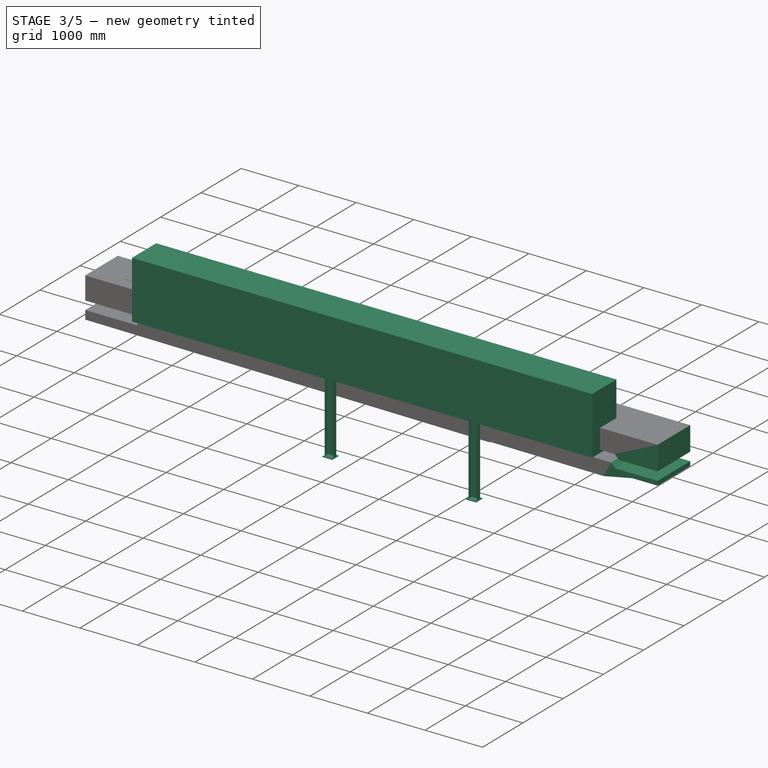
[diagram: stage 3 of 5 — iso view after this stage's code; geometry added in this stage tinted green]
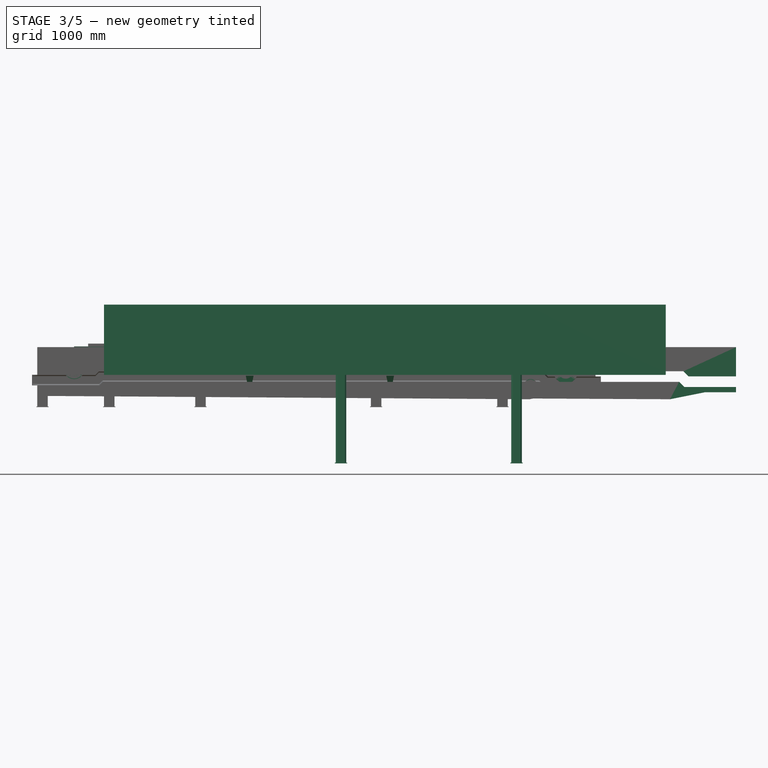
[diagram: stage 3 of 5 — front view after this stage's code; geometry added in this stage tinted green]
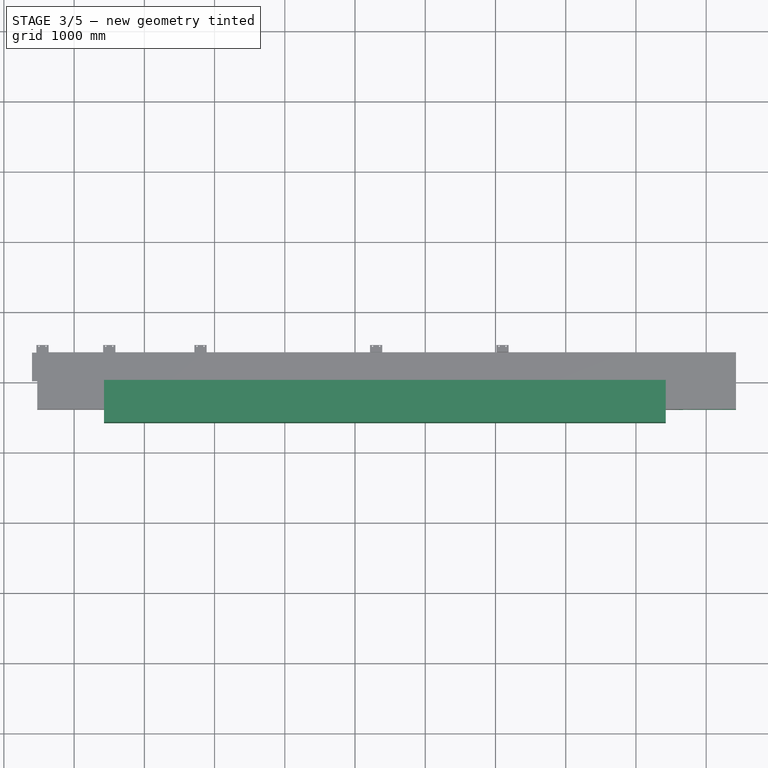
[diagram: stage 3 of 5 — top view after this stage's code; geometry added in this stage tinted green]
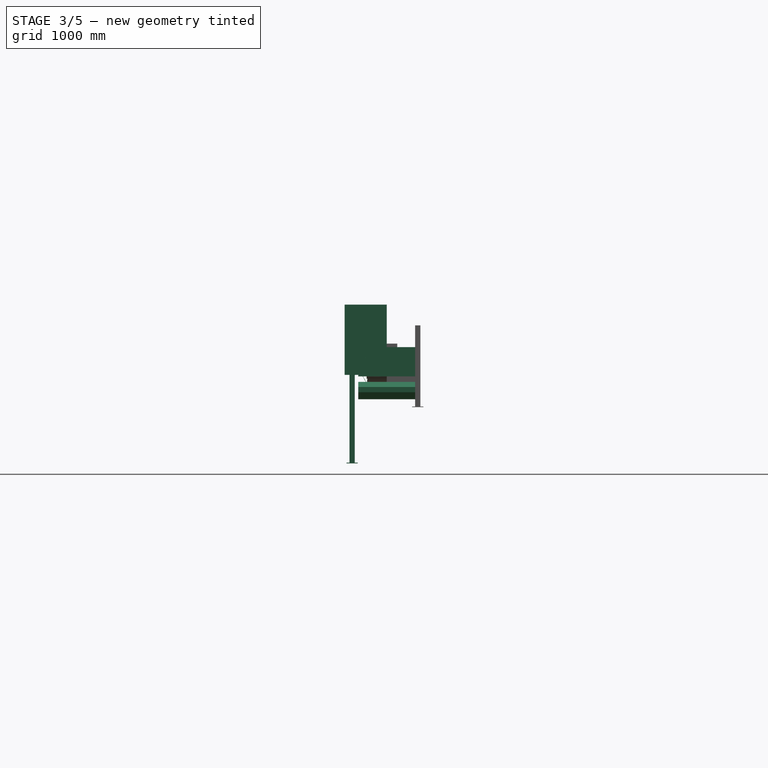
[diagram: stage 3 of 5 — right view after this stage's code; geometry added in this stage tinted green]
FEATURE [App::Part] Part011  label="Skirt"
  Group = -> [Part008,Mirror003]
  Origin = -> Origin015
  Placement = pos=(0,0,-13) rot=(0,0,1;0rad)
FEATURE [App::Part] Part012  label="Frame"
  Group = -> [Part,Mirror,Sketch007,Sketch010]
  Origin = -> Origin016
FEATURE [Sketcher::SketchObject] Sketch020
  ArcFitTolerance = 0
  FullyConstrained = false
  MakeInternals = false
  Placement = pos=(0,0,0) rot=(1,0,0;1.5708rad)
  expr: Constraints[21] = Spreadsheet.C0 + 425
  sketch-geometry (8):
    g0: LineSegment StartX=-525 StartY=-89 StartZ=0 EndX=-525 EndY=305 EndZ=0
    g1: LineSegment StartX=-525 StartY=305 StartZ=0 EndX=9425 EndY=305 EndZ=0
    g2: LineSegment StartX=9425 StartY=305 StartZ=0 EndX=9425 EndY=-112 EndZ=0
    g3: LineSegment StartX=9425 StartY=-112 StartZ=0 EndX=8750 EndY=-112 EndZ=0
    g4: LineSegment StartX=8750 StartY=-112 StartZ=0 EndX=8677 EndY=-39 EndZ=0
    g5: LineSegment StartX=8677 StartY=-39 StartZ=0 EndX=349.997 EndY=-39 EndZ=0
    g6: LineSegment StartX=349.997 StartY=-39 StartZ=0 EndX=299.997 EndY=-89 EndZ=0
    g7: LineSegment StartX=299.997 StartY=-89 StartZ=0 EndX=-525 EndY=-89 EndZ=0
  constraints (23):
    c: Vertical(g0)
    c: Coincident(g0,g1)
    c: Horizontal(g1)
    c: Coincident(g1,g2)
    c: Vertical(g2)
    c: Coincident(g2,g3)
    c: Horizontal(g3)
    c: Coincident(g3,g4)
    c: Coincident(g4,g5)
    c: Horizontal(g5)
    c: DistanceY(g-1,g2) = -112
    c: Angle(g3,g4) = 2.35619
    c: DistanceY(g0,g0) = 394
    c: Coincident(g5,g6)
    c: Coincident(g7,g6)
    c: Coincident(g7,g0)
    c: Horizontal(g7)
    c: DistanceX(g0,g-1) = 525
    c: DistanceY(g0,g-1) = 89
    c: Angle(g-1,g6) = 0.785398
    c: DistanceX(g6,g6) = 50
    c: DistanceX(g-1,g1) = 9425
    c: DistanceX(g3,g3) = 675
FEATURE [Part::Extrusion] Extrude012
  Base = -> Sketch020
  Dir = (0,-1,2e-16)
  DirMode = 2
  FaceMakerClass = Part::FaceMakerBullseye
  FaceMakerMode = 3
  LengthFwd = 810
  LengthRev = 0
  Solid = true
  Symmetric = true
FEATURE [Part::FeaturePython] BasePlate003  # WARN: FeaturePython — macro-defined, semantics opaque (R4)
  B = 175
  D = 19
  H = 160
  b1 = 25
  h1 = 30
  sface = 0
FEATURE [Part::Extrusion] Extrude023
  Base = -> BasePlate003
  Dir = (0,0,1)
  DirMode = 2
  FaceMakerClass = Part::FaceMakerBullseye
  FaceMakerMode = 3
  LengthFwd = 10
  LengthRev = 0
  Solid = true
  Symmetric = false
FEATURE [Part::FeaturePython] Channel003  # WARN: FeaturePython — macro-defined, semantics opaque (R4)
  B = 75
  H = 150
  L = 1350
  Solid = true
  g0 = 7.85
  mass = 22.8216
  size = 3
  standard = SS
  expr: L = str(Spreadsheet.Ht + (Spreadsheet.C0 - (2700 + 500)) * tan(Spreadsheet.k))
FEATURE [Part::MultiFuse] Fusion013  label="PostC003"
  Placement = pos=(6300,-492.5,-1350) rot=(0,0,-1;1.5708rad)
  Shapes = -> [Extrude023,Channel003]
  expr: .Placement.Base.x = Spreadsheet.C0 - 2700
  expr: .Placement.Base.z = -Spreadsheet.Ht
FEATURE [Part::FeaturePython] Array004  # Draft array (typed FeaturePython)
  Angle = 360
  ArrayType = 0
  Axis = (0,0,1)
  Base = -> Fusion013
  Center = (0,0,0)
  Count = 2
  Fuse = false
  IntervalAxis = (0,0,0)
  IntervalX = (-2500,0,0)
  IntervalY = (0,100,0)
  IntervalZ = (0,0,100)
  NumberCircles = 3
  NumberPolar = 5
  NumberX = 2
  NumberY = 1
  NumberZ = 1
  RadialDistance = 50
  Symmetry = 1
  TangentialDistance = 25
  expr: NumberX = (Spreadsheet.C0 - 3200) / 2500
FEATURE [Sketcher::SketchObject] Sketch026
  ArcFitTolerance = 0
  FullyConstrained = true
  MakeInternals = false
  Placement = pos=(0,0,0) rot=(1,0,0;1.5708rad)
  expr: Constraints[11] = -90 + 500 * tan(Spreadsheet.k)
  expr: Constraints[8] = 180 - Spreadsheet.k
  expr: Constraints[9] = Spreadsheet.C0 - 1000
  sketch-geometry (4):
    g0: LineSegment StartX=425 StartY=-90 StartZ=0 EndX=8425 EndY=-90 EndZ=0
    g1: LineSegment StartX=8425 StartY=-90 StartZ=0 EndX=8425 EndY=910 EndZ=0
    g2: LineSegment StartX=8425 StartY=910 StartZ=0 EndX=425 EndY=910 EndZ=0
    g3: LineSegment StartX=425 StartY=910 StartZ=0 EndX=425 EndY=-90 EndZ=0
  constraints (12):
    c: Coincident(g0,g1)
    c: Vertical(g1)
    c: Coincident(g1,g2)
    c: Horizontal(g2)
    c: Coincident(g2,g3)
    c: Coincident(g3,g0)
    c: Vertical(g3)
    c: DistanceX(g-1,g0) = 425
    c: Angle(g0,g-1) = 3.14159
    c: DistanceX(g2,g2) = 8000
    c: DistanceY(g1,g1) = 1000
    c: DistanceY(g-1,g0) = -90
FEATURE [Part::Extrusion] Extrude024
  Base = -> Sketch026
  Dir = (0,-1,2e-16)
  DirMode = 2
  FaceMakerClass = Part::FaceMakerBullseye
  FaceMakerMode = 3
  LengthFwd = 600
  LengthRev = 0
  Solid = true
  Symmetric = false
FEATURE [Part::Feature] Self_Aligning_Return_500
  Placement = pos=(1000,0,-210) rot=(0,0,1;1.5708rad)
  shape: bbox 258 x 790 x 295 mm, 133 faces, 4 solids (baked)
FEATURE [App::Part] Part010  label="Pulleys"
  Group = -> [Array001,Array,Part005,Part003,CPM2_4145,Self_Aligning_Carrier_500,Self_Aligning_Return_500]
  Origin = -> Origin014
FEATURE [Sketcher::SketchObject] Sketch027
  ArcFitTolerance = 1e-06
  FullyConstrained = true
  MakeInternals = false
  Placement = pos=(0,0,0) rot=(1,0,0;1.5708rad)
  sketch-geometry (4):
    g0: LineSegment StartX=200 StartY=305 StartZ=0 EndX=500 EndY=305 EndZ=0
    g1: LineSegment StartX=500 StartY=305 StartZ=0 EndX=500 EndY=355 EndZ=0
    g2: LineSegment StartX=500 StartY=355 StartZ=0 EndX=200 EndY=355 EndZ=0
    g3: LineSegment StartX=200 StartY=355 StartZ=0 EndX=200 EndY=305 EndZ=0
  constraints (12):
    c: Coincident(g0,g1)
    c: Coincident(g1,g2)
    c: Coincident(g2,g3)
    c: Coincident(g3,g0)
    c: Horizontal(g0)
    c: Horizontal(g2)
    c: Vertical(g1)
    c: Vertical(g3)
    c: DistanceY(g3,g3) = 50
    c: DistanceX(g2,g2) = 300
    c: Distance(g2,g-2) = 200
    c: DistanceY(g-1,g0) = 305
FEATURE [Part::Extrusion] Extrude025
  Base = -> Sketch027
  Dir = (0,-1,2e-16)
  DirMode = 2
  FaceMakerClass = Part::FaceMakerBullseye
  FaceMakerMode = 3
  LengthFwd = 300
  LengthRev = 0
  Solid = true
  Symmetric = true
FEATURE [Part::MultiFuse] Fusion014
  Refine = true
  Shapes = -> [Extrude012,Extrude025]
FEATURE [App::Part] Part013  label="Cover"
  Group = -> [Sketch021,Extrude012,Extrude025,Sketch027,Sketch020,Fusion014]
  Origin = -> Origin017
FEATURE [Part::Extrusion] Extrude026
  Base = -> Sketch023
  Dir = (0,-1,2e-16)
  DirMode = 2
  FaceMakerClass = Part::FaceMakerBullseye
  FaceMakerMode = 3
  LengthFwd = 810
  LengthRev = 0
  Solid = true
  Symmetric = true
FEATURE [App::Part] Part014  label="waterReceptacle"
  Group = -> [Sketch023,Extrude026]
  Origin = -> Origin018
FEATURE [App::Part] Part017  label="body"
  Group = -> [Part015,Part014,Part013,Part012,Part011,Part010]
  Origin = -> Origin020
  expr: .Placement.Rotation.Angle = -Spreadsheet.k
FEATURE [App::Part] Part002  label="500B_motorpulley"
  Group = -> [Spreadsheet,Part017,Part019]
  Origin = -> Origin007
  Placement = pos=(0,0,1350) rot=(0,0,1;0rad)
FEATURE [Spreadsheet::Sheet] Spreadsheet002  label="shtBeltAssy001"
  cells = C1='tailPulleyHIght Ht; D1='Inclination k(degree); E1='Array_n; F1='BeltWidth B0; A2='CenterDistance C0; B2(C0)=7000; C2(Ht)=550; D2(k)=6; E2(n0)==C0 / 2500; F2=500; A3='BeltWidth B0; B3(B0)=500; C3=400; D3=450; E3=500; F3=600; G3=700; H3=750; I3=800; J3=900; K3=1000; A4='Belt b1; B4(b1)=180; C4=145; D4=165; E4=180; F4=210; G4=250; H4=265; I4=280; J4=315; K4=345; A5='Belt b2; B5(b2)=160; C5==(C3 - C4) / 2; D5==(D3 - D4) / 2; E5==(E3 - E4) / 2; F5==(F3 - F4) / 2; G5==(G3 - G4) / 2; H5==(H3 - H4) / 2; I5==(I3 - I4) / 2; J5==(J3 - J4) / 2; K5==(K3 - K4) / 2; A6='BeltThickness t0; B6(t0)=10; C6=10; D6=10; E6=10; F6=10; G6=10; H6=10; I6=10; J6=10; K6=10; A7='HeadPullyDia D0; B7(D0)=360; C7=300; D7=300; E7=360; F7=360; G7=360; H7=460; I7=460; J7=520; K7=520; A8='TailPullyDia d1; B8(d1)=300; C8=260; D8=260; E8=300; F8=300; G8=300; H8=390; I8=390; J8=440; K8=440; A9='SnapPullyDia d2; B9(d2)=200; C9=200; D9=200; E9=200; F9=200; G9=200; H9=200; I9=200; J9=200; K9=200; A10='SnapPully Ls; B10(Ls)=500; C10=400; D10=400; E10=400; F10=500; G10=500; H10=500; I10=500; J10=500; K10=500; A11='SnapPully h0; B11(h0)=180; C11=180; D11=180; E11=160; F11=180; G11=180; H11=180; I11=180; J11=180; K11=180; A12='hontaihaba W; B12(W0)=810; C12=710; D12=760; E12=810; F12=910; G12=910; H12=910; I12=910; J12=910; K12=910; A13='hontai _h; B13=103.5; C13=103.5; D13=103.5; E13=103.5; F13=103.5; G13=103.5; H13=103.5; I13=103.5; J13=103.5; K13=103.5; A14='hontai_z; B14=16; C14=16; D14=16; E14=16; F14=16; G14=16; H14=16; I14=16; J14=16; K14=16; A15='takeup_x; B15=-403.47; C15=-403.47; D15=-403.47; E15=-403.47; F15=-403.47; G15=-403.47; H15=-403.47; I15=-403.47; J15=-403.47; K15=-403.47; A16='takeup_y; B16=-362.8; C16=-362.8; D16=-362.8; E16=-362.8; F16=-410; G16=-410; H16=-410; I16=-410; J16=-410; K16=-410; A17='takeup_z; B17=-87; C17=-87; D17=-87; E17=-87; F17=-57; G17=-57; H17=-57; I17=-57; J17=-57; K17=-57; A18='carrierPitch  cp; B18=1000; A19='returnPitch rp; B19=1500; A20='outletL; B20(outletL)=50; A21='outletK; B21(outletK)=0; A22='insertX; B22(insertX)=300; A23='insertK; B23(insertK)=0
FEATURE [Part::FeaturePython] CPM2_4146  # WARN: FeaturePython — macro-defined, semantics opaque (R4)
  A = 550
  B1 = 500
  B2 = 600
  C = 70
  D = 360
  D1 = 356
  D2 = 228
  D3 = 278
  E = 170
  F = 0
  G1 = 30
  G2 = 30
  H = 33
  L = 863
  M = 210
  N1 = 60
  N2 = 60
  P = 75
  Placement = pos=(7000,0,-30) rot=(0,0,1;1.5708rad)
  R = 20
  a = 11
  b = 11
  d = 18
  key = 5
  expr: .Placement.Base.x = Spreadsheet002.C0
FEATURE [Sketcher::SketchObject] Sketch028
  ArcFitTolerance = 0
  FullyConstrained = true
  MakeInternals = false
  MapMode = 5
  Placement = pos=(0,0,14) rot=(1,0,0;1.5708rad)
  expr: Constraints[11] = Spreadsheet002.C0 + 1000
  sketch-geometry (5):
    g0: LineSegment StartX=-600 StartY=-99 StartZ=0 EndX=250 EndY=-99 EndZ=0
    g1: LineSegment StartX=250 StartY=-99 StartZ=0 EndX=309 EndY=-40 EndZ=0
    g2: LineSegment StartX=309 StartY=-40 StartZ=0 EndX=6728 EndY=-40 EndZ=0
    g3: LineSegment StartX=6728 StartY=-40 StartZ=0 EndX=6800 EndY=-112 EndZ=0
    g4: LineSegment StartX=6800 StartY=-112 StartZ=0 EndX=8000 EndY=-112 EndZ=0
  constraints (16):
    c: Horizontal(g0)
    c: Coincident(g0,g1)
    c: Coincident(g1,g2)
    c: Horizontal(g2)
    c: Coincident(g2,g3)
    c: Coincident(g3,g4)
    c: Horizontal(g4)
    c: DistanceX(g0,g-1) = 600
    c: Angle(g1,g0) = 2.35619
    c: DistanceX(g-1,g0) = 250
    c: Angle(g4,g3) = 2.35619
    c: DistanceX(g-1,g4) = 8000
    c: DistanceX(g4,g4) = 1200
    c: DistanceY(g0,g-1) = 99
    c: DistanceY(g0,g1) = 59
    c: DistanceY(g-1,g3) = -112
FEATURE [Part::Feature] ChannelSteel003
  Placement = pos=(-600,-2.2e-14,-239) rot=(0,0,1;0rad)
  shape: bbox 2e-07 x 75 x 150 mm, 0 faces, 0 solids (baked)
FEATURE [Part::FeaturePython] BendPulley001  # WARN: FeaturePython — macro-defined, semantics opaque (R4)
  A = 50
  B = 103.5
  C = 600
  D = 200
  E = 0
  L = 550
  Placement = pos=(6500,1.79e-13,-250.18) rot=(0,0,-1;1.5708rad)
  d1 = 50
  d2 = 45
  d3 = 0
  t1 = 9
  t2 = 9
  t3 = 8
  t4 = 8
  expr: .Placement.Base.x = Spreadsheet002.C0 - 500
FEATURE [Part::Mirroring] Part__Mirroring002  label="UCP208FC (Mirror #3)001"
  Base = (0,0,0)
  Normal = (0,1,0)
  Source = -> Part__Feature004
FEATURE [Part::Feature] Part__Feature005  label="UCT204-Nipple001"
  Placement = pos=(402.082,85.3824,0) rot=(0.519988,-0.677661,0.519988;1.95044rad)
  shape: bbox 18.99 x 12.27 x 15.73 mm, 44 faces (baked)
FEATURE [Part::Feature] Part__Feature006  label="UCT204-Housing003"
  Placement = pos=(435,77,0) rot=(0,0,1;0rad)
  shape: bbox 145.2 x 120 x 60 mm, 83 faces (baked)
FEATURE [Part::Feature] Part__Feature007  label="UCTL204-300-Frame001"
  Placement = pos=(285,77,0) rot=(0,0,1;0rad)
  shape: bbox 630 x 146 x 56.5 mm, 312 faces (baked)
FEATURE [App::Part] UCTL204J_300_001  label="UCTL204J-300-001"
  Group = -> [Part__Feature005,Part__Feature006,Part__Feature007]
  Origin = -> Origin025
FEATURE [App::Part] _______________________________20_v002  label="テークアップユニット_20 v002"
  Group = -> [UCTL204J_300_001]
  Origin = -> Origin026
  Placement = pos=(-435,-360,-77) rot=(1,0,0;1.5708rad)
FEATURE [Part::FeaturePython] Take_upPulley002  # WARN: FeaturePython — macro-defined, semantics opaque (R4)
  A = 50
  B = 50
  C = 668
  D = 300
  E = 0
  L = 550
  Placement = pos=(0,0,0) rot=(0,0,-1;1.5708rad)
  d1 = 30
  d2 = 20
  d3 = 0
  t1 = 9
  t2 = 9
  t3 = 8
  t4 = 8
FEATURE [Sketcher::SketchObject] Sketch034
  ArcFitTolerance = 0
  FullyConstrained = true
  MakeInternals = false
  sketch-geometry (10):
    g0: LineSegment StartX=-600 StartY=-625 StartZ=0 EndX=-600 EndY=625 EndZ=0
    g1: LineSegment StartX=-600 StartY=625 StartZ=0 EndX=600 EndY=625 EndZ=0
    g2: LineSegment StartX=600 StartY=625 StartZ=0 EndX=600 EndY=-625 EndZ=0
    g3: LineSegment StartX=600 StartY=-625 StartZ=0 EndX=-600 EndY=-625 EndZ=0
    g4: GeomPoint [constr] X=0 Y=0 Z=0
    g5: LineSegment StartX=-525 StartY=-550 StartZ=0 EndX=-525 EndY=550 EndZ=0
    g6: LineSegment StartX=-525 StartY=550 StartZ=0 EndX=525 EndY=550 EndZ=0
    g7: LineSegment StartX=525 StartY=550 StartZ=0 EndX=525 EndY=-550 EndZ=0
    g8: LineSegment StartX=525 StartY=-550 StartZ=0 EndX=-525 EndY=-550 EndZ=0
    g9: GeomPoint [constr] X=0 Y=0 Z=0
  constraints (24):
    c: Coincident(g0,g1)
    c: Coincident(g1,g2)
    c: Coincident(g2,g3)
    c: Coincident(g3,g0)
    c: Horizontal(g1)
    c: Horizontal(g3)
    c: Vertical(g0)
    c: Vertical(g2)
    c: Symmetric(g1,g0,g4)
    c: Coincident(g4,g-1)
    c: Distance(g0) = 1250
    c: Distance(g4,g0) = 600
    c: Coincident(g5,g6)
    c: Coincident(g6,g7)
    c: Coincident(g7,g8)
    c: Coincident(g8,g5)
    c: Horizontal(g6)
    c: Horizontal(g8)
    c: Vertical(g5)
    c: Vertical(g7)
    c: Symmetric(g6,g5,g9)
    c: Coincident(g9,g4)
    c: Distance(g5,g0) = 75
    c: Distance(g5,g1) = 75
FEATURE [Part::Mirroring] Mirror006  label="テークアップユニット_20 v1 (mirrored)001"
  Base = (-400,0,0)
  Normal = (0,-1,0)
  Source = -> _______________________________20_v002
FEATURE [Part::Compound] Compound001  label="takeUp001"
  Links = -> [Mirror006,_______________________________20_v002]
FEATURE [App::Part] Part025  label="skirt002"
  Group = -> [Sketch035,Extrude032]
  Origin = -> Origin030
  Placement = pos=(0,-50,0) rot=(0,0,1;0rad)
FEATURE [Part::Mirroring] Mirror007  label="skirt003"
  Base = (-900,0,0)
  Normal = (0,-1,0)
  Source = -> Part025
FEATURE [App::Part] Part034  label="Post001"
  Group = -> [Part033,Mirror008]
  Origin = -> Origin039
FEATURE [Part::Feature] Carrier_501
  Placement = pos=(1000,-395,0) rot=(0,0,1;1.5708rad)
  shape: bbox 190 x 790 x 240.8 mm, 128 faces, 3 solids (baked)
FEATURE [Part::FeaturePython] Array005  label="carrier001"  # Draft array (typed FeaturePython)
  AlwaysSyncPlacement = false
  Angle = 360
  ArrayType = 0
  Axis = (0,0,1)
  Base = -> Carrier_501
  Center = (0,0,0)
  Count = 5
  ExpandArray = false
  Fuse = false
  IntervalAxis = (0,0,0)
  IntervalX = (1000,0,0)
  IntervalY = (0,100,0)
  IntervalZ = (0,0,100)
  NumberCircles = 3
  NumberPolar = 5
  NumberX = 5
  NumberY = 1
  NumberZ = 1
  PlacementList = 5 placements: arithmetic series from (1000,-395,0) step (1000,0,0) to (5000,-395,0)
  RadialDistance = 50
  ScaleList = (5) [(1,1,1),(1,1,1),(1,1,1),(1,1,1),(1,1,1)]
  Symmetry = 1
  TangentialDistance = 25
  expr: NumberX = Spreadsheet002.C0 / Spreadsheet002.B18 - 2
FEATURE [Part::Feature] Self_Aligning_Carrier_501
  Placement = pos=(6000,0,-32) rot=(0,0,-1;1.5708rad)
  shape: bbox 298 x 790 x 376 mm, 205 faces, 4 solids (baked)
  expr: .Placement.Base.x = Spreadsheet002.C0 - 1000
FEATURE [Part::Feature] Return_501
  Placement = pos=(2500,0,0) rot=(0,0,1;1.5708rad)
  shape: bbox 110 x 790 x 159.5 mm, 37 faces (baked)
FEATURE [Part::FeaturePython] Array006  label="returnArray001"  # Draft array (typed FeaturePython)
  AlwaysSyncPlacement = false
  Angle = 360
  ArrayType = 0
  Axis = (0,0,1)
  Base = -> Return_501
  Center = (0,0,0)
  Count = 2
  ExpandArray = false
  Fuse = false
  IntervalAxis = (0,0,0)
  IntervalX = (2000,0,0)
  IntervalY = (0,100,0)
  IntervalZ = (0,0,100)
  NumberCircles = 3
  NumberPolar = 5
  NumberX = 2
  NumberY = 1
  NumberZ = 1
  Placement = pos=(0,2.551e-05,-210) rot=(0,0,1;0rad)
  PlacementList = 2 placements: [(2500,0,0),(4500,0,0)]
  RadialDistance = 50
  ScaleList = (2) [(1,1,1),(1,1,1)]
  Symmetry = 1
  TangentialDistance = 25
  expr: NumberX = (Spreadsheet002.C0 - 3000) / 2000
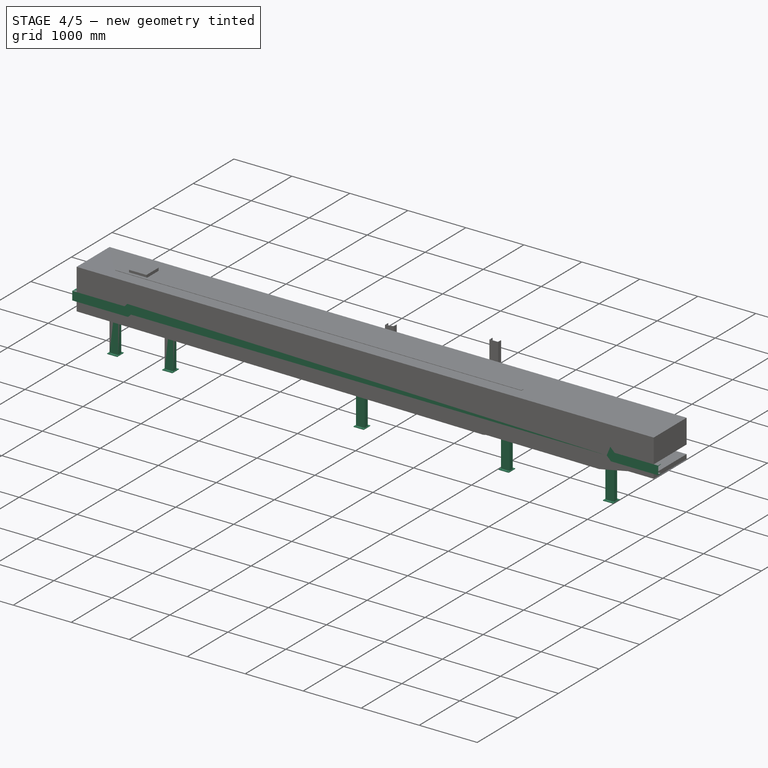
[diagram: stage 4 of 5 — iso view after this stage's code; geometry added in this stage tinted green]
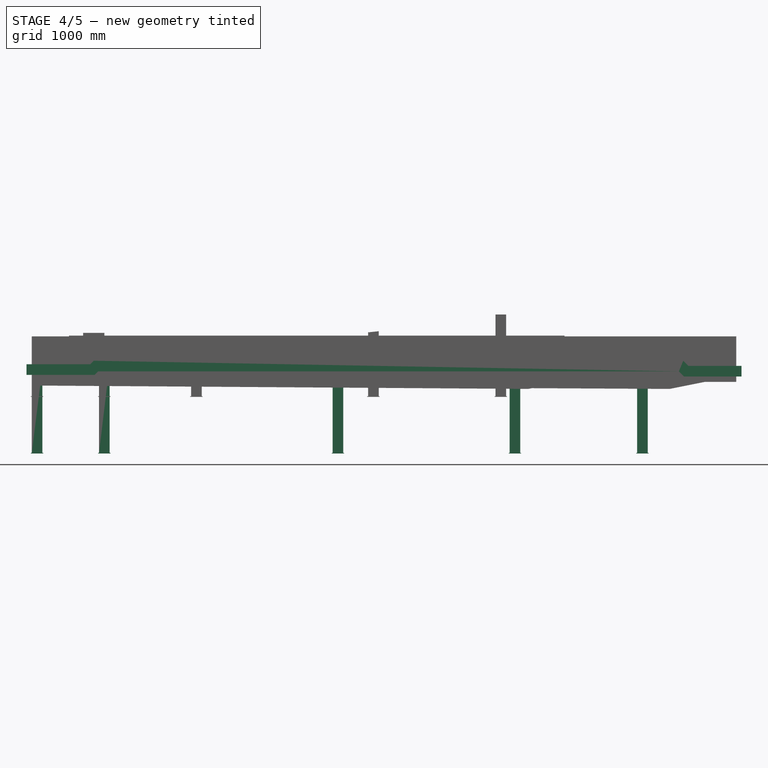
[diagram: stage 4 of 5 — front view after this stage's code; geometry added in this stage tinted green]
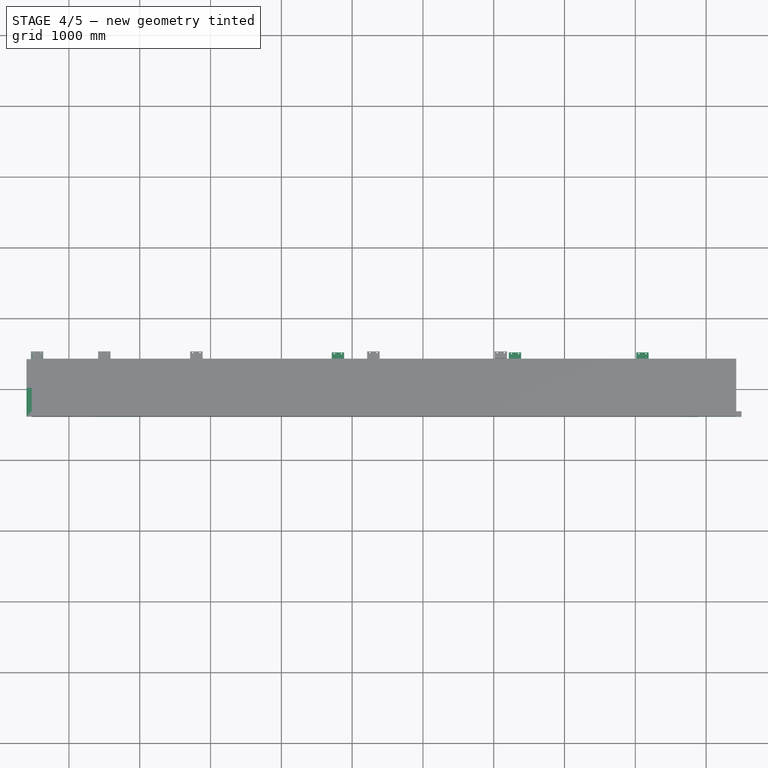
[diagram: stage 4 of 5 — top view after this stage's code; geometry added in this stage tinted green]
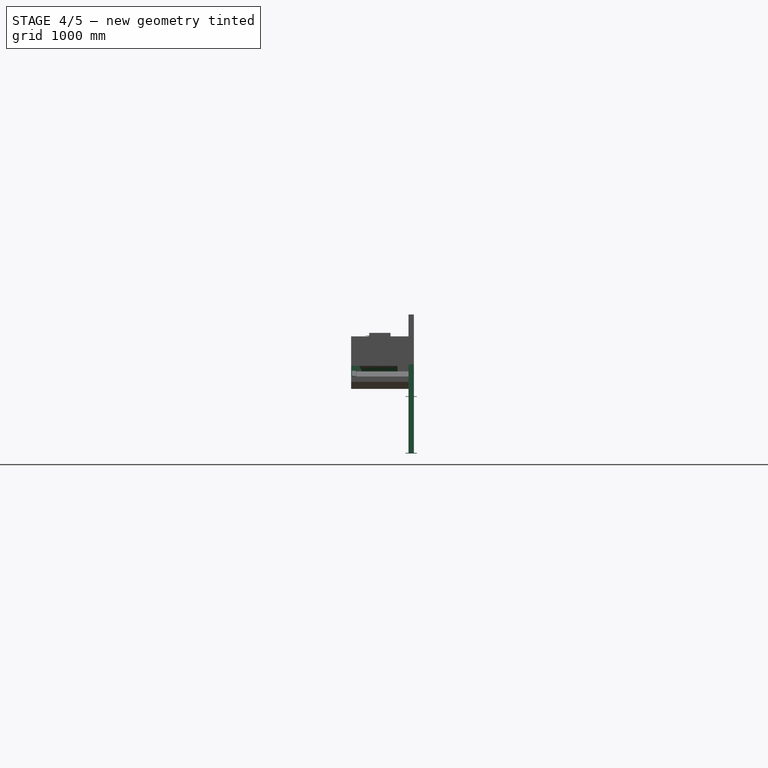
[diagram: stage 4 of 5 — right view after this stage's code; geometry added in this stage tinted green]
FEATURE [Part::Feature] Part__Feature003  label="UCP208FC"
  Placement = pos=(8500,-360.5,-250.18) rot=(0,0.707107,-0.707107;3.14159rad)
  shape: bbox 184 x 86 x 106.1 mm, 117 faces (baked)
  expr: .Placement.Base.x = Spreadsheet.C0 - 500
FEATURE [Sketcher::SketchObject] Sketch010
  ArcFitTolerance = 0
  FullyConstrained = true
  MakeInternals = false
  MapMode = 5
  Placement = pos=(-105.6,-410.5,-87) rot=(1,0,0;3.14159rad)
FEATURE [Sketcher::SketchObject] Sketch011
  ArcFitTolerance = 0
  FullyConstrained = true
  MakeInternals = false
  MapMode = 5
  Placement = pos=(0,0,0) rot=(1,0,0;1.5708rad)
  expr: Constraints[14] = Spreadsheet.C0
  sketch-geometry (6):
    g0: LineSegment StartX=-600 StartY=-89 StartZ=0 EndX=300 EndY=-89 EndZ=0
    g1: LineSegment StartX=300 StartY=-89 StartZ=0 EndX=350 EndY=-39 EndZ=0
    g2: LineSegment StartX=350 StartY=-39 StartZ=0 EndX=8677 EndY=-39 EndZ=0
    g3: LineSegment StartX=8677 StartY=-39 StartZ=0 EndX=8750 EndY=-112 EndZ=0
    g4: LineSegment StartX=8750 StartY=-112 StartZ=0 EndX=9500 EndY=-112 EndZ=0
    g5: LineSegment [constr] StartX=0 StartY=0 StartZ=0 EndX=9000 EndY=0 EndZ=0
  constraints (19):
    c: Horizontal(g0)
    c: Coincident(g0,g1)
    c: Coincident(g1,g2)
    c: Horizontal(g2)
    c: Coincident(g2,g3)
    c: Coincident(g3,g4)
    c: Horizontal(g4)
    c: DistanceX(g0,g-1) = 600
    c: DistanceX(g-1,g0) = 300
    c: Angle(g1,g0) = 2.35619
    c: Angle(g4,g3) = 2.35619
    c: PointOnObject(g5,g-1)
    c: Coincident(g5,g-1)
    c: Distance(g5,g4) = 112
    c: DistanceX(g5,g5) = 9000
    c: DistanceX(g5,g4) = 500
    c: DistanceX(g3,g5) = 250
    c: DistanceY(g0,g1) = 50
    c: DistanceY(g-1,g0) = -89
FEATURE [Part::Sweep] Sweep001
  Frenet = false
  Placement = pos=(0,-405,0) rot=(0,0,1;0rad)
  Sections = -> [ChannelSteel001]
  Solid = true
  Spine = -> Sketch011 [Edge1,Edge2,Edge3,Edge4,Edge5]
  Transition = 1
  expr: .Placement.Base.y = -Spreadsheet.W0 / 2
FEATURE [Part::FeaturePython] ChannelSteel  # WARN: FeaturePython — macro-defined, semantics opaque (R4)
  B = 75
  H = 150
  L = 1000
  Placement = pos=(-600,0,-239) rot=(0,0,1;0rad)
  Solid = false
  g0 = 7.85
  mass = 0
  size = 3
  standard = SS
  t1 = 6.5
  t2 = 10
FEATURE [Part::Extrusion] Extrude006
  Base = -> ChannelSteel
  Dir = (0,1,0)
  DirMode = 2
  FaceMakerClass = Part::FaceMakerBullseye
  FaceMakerMode = 3
  LengthFwd = 405
  LengthRev = 0
  Reversed = true
  Solid = false
  Symmetric = false
  expr: LengthFwd = Spreadsheet.B12 / 2
FEATURE [Part::MultiFuse] Fusion
  Refine = true
  Shapes = -> [Sweep001,Extrude006]
FEATURE [Part::Extrusion] Extrude003
  Base = -> Sketch012
  Dir = (0,0,1)
  DirMode = 2
  FaceMakerClass = Part::FaceMakerBullseye
  FaceMakerMode = 3
  LengthFwd = 12
  LengthRev = 0
  Solid = true
  Symmetric = false
FEATURE [Sketcher::SketchObject] Sketch021
  ArcFitTolerance = 0
  FullyConstrained = true
  MakeInternals = false
  MapMode = 5
  Placement = pos=(0,9.13e-14,411) rot=(0,0,1;0rad)
  expr: Constraints[10] = .Constraints.w / 2
  sketch-geometry (4):
    g0: LineSegment StartX=400 StartY=-200 StartZ=0 EndX=800 EndY=-200 EndZ=0
    g1: LineSegment StartX=800 StartY=-200 StartZ=0 EndX=800 EndY=200 EndZ=0
    g2: LineSegment StartX=800 StartY=200 StartZ=0 EndX=400 EndY=200 EndZ=0
    g3: LineSegment StartX=400 StartY=200 StartZ=0 EndX=400 EndY=-200 EndZ=0
  constraints (12):
    c: Coincident(g0,g1)
    c: Coincident(g1,g2)
    c: Coincident(g2,g3)
    c: Coincident(g3,g0)
    c: Horizontal(g0)
    c: Horizontal(g2)
    c: Vertical(g1)
    c: Vertical(g3)
    c: DistanceX(g2,g2) = 400
    c: DistanceY(g3,g3) = 400  'w'
    c: DistanceY(g-1,g2) = 200
    c: DistanceX(g-1,g2) = 400
FEATURE [Sketcher::SketchObject] Sketch023
  ArcFitTolerance = 0
  FullyConstrained = true
  MakeInternals = false
  Placement = pos=(0,0,0) rot=(1,0,0;1.5708rad)
  expr: Constraints[24] = Spreadsheet.C0 + 425
  sketch-geometry (10):
    g0: LineSegment StartX=-525 StartY=-239 StartZ=0 EndX=362 EndY=-239 EndZ=0
    g1: LineSegment StartX=362 StartY=-239 StartZ=0 EndX=412 EndY=-189 EndZ=0
    g2: LineSegment StartX=412 StartY=-189 StartZ=0 EndX=8615 EndY=-189 EndZ=0
    g3: LineSegment StartX=8615 StartY=-189 StartZ=0 EndX=8688 EndY=-262 EndZ=0
    g4: LineSegment StartX=8688 StartY=-262 StartZ=0 EndX=9425 EndY=-262 EndZ=0
    g5: LineSegment StartX=8985 StartY=-337 StartZ=0 EndX=8485 EndY=-437 EndZ=0
    g6: LineSegment StartX=8485 StartY=-437 StartZ=0 EndX=-525 EndY=-389 EndZ=0
    g7: LineSegment StartX=-525 StartY=-389 StartZ=0 EndX=-525 EndY=-239 EndZ=0
    g8: LineSegment StartX=8985 StartY=-337 StartZ=0 EndX=9425 EndY=-337 EndZ=0
    g9: LineSegment StartX=9425 StartY=-337 StartZ=0 EndX=9425 EndY=-262 EndZ=0
  constraints (30):
    c: Horizontal(g0)
    c: Coincident(g0,g1)
    c: Coincident(g1,g2)
    c: Horizontal(g2)
    c: Coincident(g2,g3)
    c: Coincident(g3,g4)
    c: Horizontal(g4)
    c: Coincident(g6,g7)
    c: Coincident(g7,g0)
    c: Vertical(g7)
    c: DistanceY(g7,g7) = 150
    c: DistanceY(g0,g-1) = 239
    c: Angle(g1,g0) = 2.35619
    c: Angle(g4,g3) = 2.35619
    c: DistanceY(g-1,g3) = -262
    c: DistanceY(g5,g3) = 75
    c: DistanceX(g5,g5) = 500
    c: DistanceY(g5,g5) = 100
    c: Horizontal(g8)
    c: Coincident(g9,g8)
    c: Coincident(g9,g4)
    c: Vertical(g9)
    c: Coincident(g8,g5)
    c: DistanceX(g5,g8) = 440
    c: DistanceX(g-2,g8) = 9425
    c: DistanceX(g-2,g0) = 362
    c: DistanceX(g6,g-1) = 525
    c: Coincident(g6,g5)
    c: DistanceX(g3,g3) = 73
    c: DistanceX(g4,g4) = 737
FEATURE [Sketcher::SketchObject] Sketch
  ArcFitTolerance = 0
  FullyConstrained = true
  MakeInternals = false
  Placement = pos=(0,0,0) rot=(0.57735,0.57735,0.57735;2.0944rad)
  expr: Constraints[1] = Spreadsheet.B0
  expr: Constraints[2] = Spreadsheet.D0 / 2
  sketch-geometry (1):
    g0: LineSegment StartX=-250 StartY=180 StartZ=0 EndX=250 EndY=180 EndZ=0
  constraints (3):
    c: Symmetric(g0,g0,g-2)
    c: DistanceX(g0,g0) = 500
    c: Distance(g-1,g0) = 180
FEATURE [Sketcher::SketchObject] Sketch001
  ArcFitTolerance = 0
  FullyConstrained = true
  MakeInternals = false
  Placement = pos=(9000,0,0) rot=(0.57735,0.57735,0.57735;2.0944rad)
  expr: .Placement.Base.x = Spreadsheet.C0
  expr: Constraints[1] = Spreadsheet.B0
  expr: Constraints[2] = Spreadsheet.D0 / 2
  sketch-geometry (1):
    g0: LineSegment StartX=-250 StartY=180 StartZ=0 EndX=250 EndY=180 EndZ=0
  constraints (3):
    c: Symmetric(g0,g0,g-2)
    c: DistanceX(g0,g0) = 500
    c: Distance(g-1,g0) = 180
FEATURE [Sketcher::SketchObject] Sketch002
  ArcFitTolerance = 0
  FullyConstrained = true
  MakeInternals = false
  Placement = pos=(500,0,0) rot=(0.57735,0.57735,0.57735;2.0944rad)
  expr: Constraints[5] = Spreadsheet.b2
  expr: Constraints[6] = Spreadsheet.b2
  expr: Constraints[7] = Spreadsheet.D0 / 2
  expr: Constraints[8] = Spreadsheet.b1
  sketch-geometry (3):
    g0: LineSegment StartX=-240.351 StartY=234.723 StartZ=0 EndX=-90 EndY=180 EndZ=0
    g1: LineSegment StartX=-90 StartY=180 StartZ=0 EndX=90 EndY=180 EndZ=0
    g2: LineSegment StartX=90 StartY=180 StartZ=0 EndX=240.351 EndY=234.723 EndZ=0
  constraints (9):
    c: Coincident(g0,g1)
    c: Coincident(g1,g2)
    c: Angle(g2,g1) = 2.79253
    c: Angle(g1,g0) = 2.79253
    c: Symmetric(g1,g0,g-2)
    c: Distance(g2) = 160
    c: Distance(g0) = 160
    c: DistanceY(g-1,g1) = 180
    c: DistanceX(g1,g1) = 180
FEATURE [Sketcher::SketchObject] Sketch003
  ArcFitTolerance = 0
  FullyConstrained = true
  MakeInternals = false
  Placement = pos=(8500,0,0) rot=(0.57735,0.57735,0.57735;2.0944rad)
  expr: .Placement.Base.x = Spreadsheet.C0 - 500
  expr: Constraints[5] = Spreadsheet.b2
  expr: Constraints[6] = Spreadsheet.b2
  expr: Constraints[7] = Spreadsheet.D0 / 2
  expr: Constraints[8] = Spreadsheet.b1
  sketch-geometry (3):
    g0: LineSegment StartX=-240.351 StartY=234.723 StartZ=0 EndX=-90 EndY=180 EndZ=0
    g1: LineSegment StartX=-90 StartY=180 StartZ=0 EndX=90 EndY=180 EndZ=0
    g2: LineSegment StartX=90 StartY=180 StartZ=0 EndX=240.351 EndY=234.723 EndZ=0
  constraints (9):
    c: Coincident(g0,g1)
    c: Coincident(g1,g2)
    c: Angle(g2,g1) = 2.79253
    c: Angle(g1,g0) = 2.79253
    c: Symmetric(g1,g0,g-2)
    c: Distance(g2) = 160
    c: Distance(g0) = 160
    c: DistanceY(g-1,g1) = 180
    c: DistanceX(g1,g1) = 180
FEATURE [Sketcher::SketchObject] Sketch005
  ArcFitTolerance = 0
  FullyConstrained = true
  MakeInternals = false
  Placement = pos=(9000,0,0) rot=(1,0,0;1.5708rad)
  expr: .Placement.Base.x = Spreadsheet.C0
  expr: Constraints[0] = Spreadsheet.D0
  expr: Constraints[10] = Spreadsheet.Ls
  expr: Constraints[20] = Spreadsheet.t0
  expr: Constraints[22] = Spreadsheet.t0
  expr: Constraints[29] = (Spreadsheet.D0 - Spreadsheet.d1) / 2
  expr: Constraints[2] = Spreadsheet.d1
  expr: Constraints[6] = Spreadsheet.d2 / 2
  expr: Constraints[8] = Spreadsheet.C0
  sketch-geometry (12):
    g0: ArcOfCircle CenterX=1.102e-13 CenterY=0 CenterZ=0 NormalX=0 NormalY=0 NormalZ=1 AngleXU=0 Radius=180 StartAngle=4.58871 EndAngle=7.85398
    g1: ArcOfCircle CenterX=-9000 CenterY=30 CenterZ=0 NormalX=0 NormalY=0 NormalZ=1 AngleXU=0 Radius=150 StartAngle=1.5708 EndAngle=4.71239
    g2: LineSegment StartX=-22.2051 StartY=-178.625 StartZ=0 EndX=-487.664 EndY=-120.764 EndZ=0
    g3: LineSegment StartX=-500 StartY=-120 StartZ=0 EndX=-9000 EndY=-120 EndZ=0
    g4: ArcOfCircle CenterX=-500 CenterY=-220 CenterZ=0 NormalX=0 NormalY=0 NormalZ=1 AngleXU=0 Radius=100 StartAngle=1.44712 EndAngle=1.5708
    g5: ArcOfCircle CenterX=-9000 CenterY=30 CenterZ=0 NormalX=0 NormalY=0 NormalZ=1 AngleXU=0 Radius=160 StartAngle=1.5708 EndAngle=4.71239
    g6: LineSegment StartX=-9000 StartY=-130 StartZ=0 EndX=-500 EndY=-130 EndZ=0
    g7: ArcOfCircle CenterX=-500 CenterY=-220 CenterZ=0 NormalX=0 NormalY=0 NormalZ=1 AngleXU=0 Radius=90 StartAngle=1.44712 EndAngle=1.5708
    g8: LineSegment StartX=-488.898 StartY=-130.687 StartZ=0 EndX=-23.4385 EndY=-188.549 EndZ=0
    g9: ArcOfCircle CenterX=1.102e-13 CenterY=0 CenterZ=0 NormalX=0 NormalY=0 NormalZ=1 AngleXU=0 Radius=190 StartAngle=4.58871 EndAngle=7.85398
    g10: LineSegment StartX=1.102e-13 StartY=180 StartZ=0 EndX=1.133e-13 EndY=190 EndZ=0
    g11: LineSegment StartX=-9000 StartY=180 StartZ=0 EndX=-9000 EndY=190 EndZ=0
  constraints (32):
    c: Diameter(g0) = 360
    c: Coincident(g-1,g0)
    c: Diameter(g1) = 300
    c: Horizontal(g3)
    c: Tangent(g2,g4) = -1.5708
    c: Tangent(g3,g4) = -1.5708
    c: Radius(g4) = 100
    c: Coincident(g1,g3)
    c: DistanceX(g1,g0) = 9000
    c: Vertical(g0,g0)
    c: DistanceX(g4,g0) = 500
    c: Vertical(g1,g1)
    c: Coincident(g5,g1)
    c: Tangent(g5,g6) = -1.5708
    c: Tangent(g6,g7) = 1.5708
    c: Tangent(g8,g9) = -1.5708
    c: PointOnObject(g9,g-2)
    c: Coincident(g10,g0)
    c: Coincident(g10,g9)
    c: Coincident(g9,g0)
    c: DistanceY(g10,g10) = 10
    c: Coincident(g4,g7)
    c: DistanceY(g5,g1) = 10
    c: Vertical(g1,g5)
    c: Coincident(g11,g1)
    c: Coincident(g11,g5)
    c: Tangent(g7,g8) = 1.5708
    c: Vertical(g1,g1)
    c: Parallel(g8,g2)
    c: DistanceY(g-1,g1) = 30
    c: Parallel(g6,g3)
    c: Coincident(g2,g0)
FEATURE [Part::Extrusion] Extrude
  Base = -> Sketch005
  Dir = (0,-1,2e-16)
  DirMode = 2
  FaceMakerClass = Part::FaceMakerBullseye
  FaceMakerMode = 3
  LengthFwd = 500
  LengthRev = 0
  Solid = true
  Symmetric = true
  expr: LengthFwd = Spreadsheet.B0
FEATURE [Sketcher::SketchObject] Sketch025
  ArcFitTolerance = 0
  FullyConstrained = true
  MakeInternals = false
  Placement = pos=(0,0,0) rot=(1,0,0;1.5708rad)
  sketch-geometry (1):
    g0: LineSegment StartX=0 StartY=180 StartZ=0 EndX=500 EndY=180 EndZ=0
  constraints (4):
    c: Horizontal(g0)
    c: Vertical(g0,g-1)
    c: DistanceY(g-1,g0) = 180
    c: DistanceX(g0,g0) = 500
FEATURE [Sketcher::SketchObject] Sketch008
  ArcFitTolerance = 0
  FullyConstrained = true
  MakeInternals = false
  Placement = pos=(0,0,0) rot=(1,0,0;1.5708rad)
  expr: Constraints[2] = Spreadsheet.C0
  sketch-geometry (1):
    g0: LineSegment StartX=8500 StartY=180 StartZ=0 EndX=9000 EndY=180 EndZ=0
  constraints (4):
    c: Horizontal(g0)
    c: DistanceY(g-1,g0) = 180
    c: DistanceX(g-1,g0) = 9000
    c: DistanceX(g0,g0) = 500
FEATURE [Sketcher::SketchObject] Sketch009
  ArcFitTolerance = 0
  FullyConstrained = true
  MakeInternals = false
  Placement = pos=(0,0,0) rot=(1,0,0;1.5708rad)
  sketch-geometry (1):
    g0: LineSegment StartX=500 StartY=180 StartZ=0 EndX=4500 EndY=180 EndZ=0
  constraints (4):
    c: Horizontal(g0)
    c: DistanceX(g-1,g0) = 500
    c: DistanceY(g-1,g0) = 180
    c: DistanceX(g0,g0) = 4000
FEATURE [Part::Sweep] Sweep003
  Frenet = false
  Sections = -> [Sketch002,Sketch003]
  Solid = false
  Spine = -> Sketch009 [Edge1]
  Transition = 1
FEATURE [Part::Extrusion] Extrude017
  Base = -> Sweep003
  Dir = (0,0,1)
  DirMode = 0
  FaceMakerClass = Part::FaceMakerBullseye
  FaceMakerMode = 3
  LengthFwd = 10
  LengthRev = 0
  Solid = false
  Symmetric = false
FEATURE [Part::Sweep] Sweep
  Frenet = false
  Sections = -> [Sketch,Sketch002]
  Solid = false
  Spine = -> Sketch025 [Edge1]
  Transition = 1
FEATURE [Part::Extrusion] Extrude018
  Base = -> Sweep
  Dir = (0,0,1)
  DirMode = 0
  FaceMakerClass = Part::FaceMakerBullseye
  FaceMakerMode = 3
  LengthFwd = 10
  LengthRev = 0
  Solid = false
  Symmetric = false
FEATURE [Part::Sweep] Sweep004
  Frenet = false
  Sections = -> [Sketch001,Sketch003]
  Solid = false
  Spine = -> Sketch008 [Edge1]
  Transition = 1
FEATURE [Part::Extrusion] Extrude019
  Base = -> Sweep004
  Dir = (0,0,1)
  DirMode = 0
  FaceMakerClass = Part::FaceMakerBullseye
  FaceMakerMode = 3
  LengthFwd = 10
  LengthRev = 0
  Solid = false
  Symmetric = false
FEATURE [App::Part] Part015  label="Belt"
  Group = -> [Sketch005,Extrude,Sketch001,Sketch,Sketch002,Sketch003,Sketch025,Sketch008,Sketch009,Sweep003,Extrude017,Sweep,Extrude018,Sweep004,Extrude019]
  Origin = -> Origin
  Placement = pos=(0,0,-30) rot=(0,0,1;0rad)
FEATURE [Part::FeaturePython] BasePlate  # WARN: FeaturePython — macro-defined, semantics opaque (R4)
  B = 175
  D = 19
  H = 160
  b1 = 25
  h1 = 30
  sface = 0
FEATURE [Part::Extrusion] Extrude020
  Base = -> BasePlate
  Dir = (0,0,1)
  DirMode = 2
  FaceMakerClass = Part::FaceMakerBullseye
  FaceMakerMode = 3
  LengthFwd = 10
  LengthRev = 0
  Solid = true
  Symmetric = false
FEATURE [Part::FeaturePython] Channel  # WARN: FeaturePython — macro-defined, semantics opaque (R4)
  B = 75
  H = 150
  L = 1210
  Solid = true
  g0 = 7.85
  mass = 20.4549
  size = 3
  standard = SS
  expr: L = str(Spreadsheet.Ht - 140 - 450 * tan(Spreadsheet.k))
FEATURE [Part::MultiFuse] Fusion010  label="PostC"
  Placement = pos=(-450,-492.5,-1350) rot=(0,0,-1;1.5708rad)
  Shapes = -> [Extrude020,Channel]
  expr: .Placement.Base.z = -Spreadsheet.Ht
FEATURE [Part::FeaturePython] BasePlate001  # WARN: FeaturePython — macro-defined, semantics opaque (R4)
  B = 175
  D = 19
  H = 160
  b1 = 25
  h1 = 30
  sface = 0
FEATURE [Part::FeaturePython] Channel001  # WARN: FeaturePython — macro-defined, semantics opaque (R4)
  B = 75
  H = 150
  L = 1260
  Solid = true
  g0 = 7.85
  mass = 21.3001
  size = 3
  standard = SS
  expr: L = str(Spreadsheet.Ht - 90 + 500 * tan(Spreadsheet.k))
FEATURE [Part::Extrusion] Extrude021
  Base = -> BasePlate001
  Dir = (0,0,1)
  DirMode = 2
  FaceMakerClass = Part::FaceMakerBullseye
  FaceMakerMode = 3
  LengthFwd = 10
  LengthRev = 0
  Solid = true
  Symmetric = false
FEATURE [Part::MultiFuse] Fusion011  label="PostC001"
  Placement = pos=(500,-492.5,-1350) rot=(0,0,-1;1.5708rad)
  Shapes = -> [Extrude021,Channel001]
  expr: .Placement.Base.z = -Spreadsheet.Ht
FEATURE [Part::FeaturePython] BasePlate002  # WARN: FeaturePython — macro-defined, semantics opaque (R4)
  B = 175
  D = 19
  H = 160
  b1 = 25
  h1 = 30
  sface = 0
FEATURE [Part::FeaturePython] Channel002  # WARN: FeaturePython — macro-defined, semantics opaque (R4)
  B = 75
  H = 150
  L = 1250
  Solid = true
  g0 = 7.85
  mass = 21.1311
  size = 3
  standard = SS
  expr: L = str(Spreadsheet.Ht - 100 + (Spreadsheet.C0 - 200) * tan(Spreadsheet.k))
FEATURE [Part::Extrusion] Extrude022
  Base = -> BasePlate002
  Dir = (0,0,1)
  DirMode = 2
  FaceMakerClass = Part::FaceMakerBullseye
  FaceMakerMode = 3
  LengthFwd = 10
  LengthRev = 0
  Solid = true
  Symmetric = false
FEATURE [Part::MultiFuse] Fusion012  label="ヘッド部"
  Placement = pos=(8100,-492.5,-1350) rot=(0,0,-1;1.5708rad)
  Shapes = -> [Extrude022,Channel002]
  expr: .Placement.Base.x = Spreadsheet.C0 - 900
  expr: .Placement.Base.z = -Spreadsheet.Ht
FEATURE [Part::Cut] Cut002
  Base = -> Array004
  Tool = -> Extrude024
FEATURE [App::Part] Part018  label="post"
  Group = -> [BasePlate,Channel,Extrude020,Fusion010,BasePlate001,Channel001,Extrude021,Fusion011,BasePlate002,Channel002,Extrude022,Fusion012,Fusion013,BasePlate003,Channel003,Sketch026,Extrude023,Extrude024,Array004,Cut002]
  Origin = -> Origin021
  Placement = pos=(0,50,0) rot=(0,1,0;0rad)
FEATURE [Part::Mirroring] Mirror004  label="post (mirrored)"
  Base = (-3000,0,0)
  Normal = (0,-1,0)
  Source = -> Part018
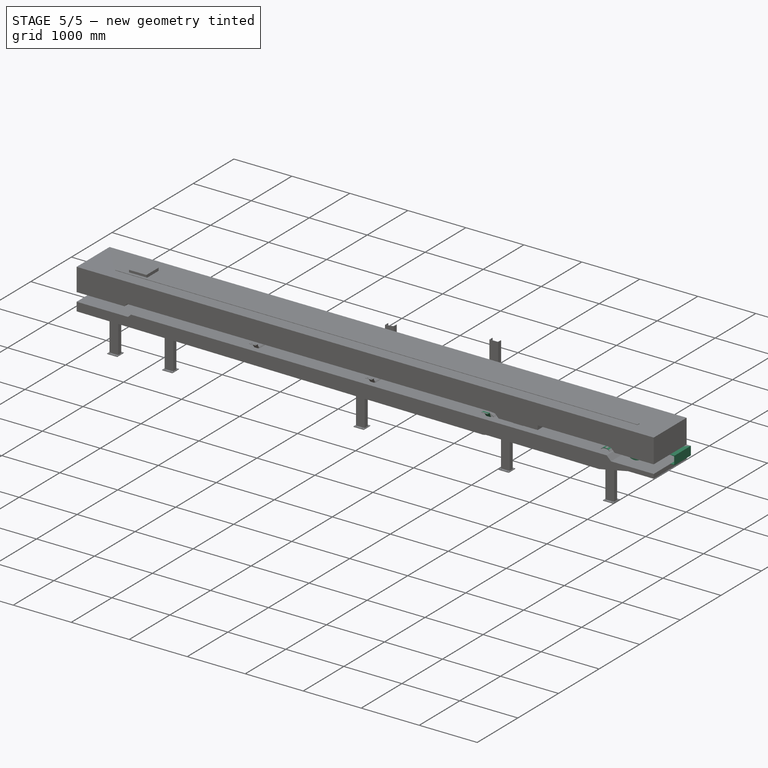
[diagram: stage 5 of 5 — iso view after this stage's code; geometry added in this stage tinted green]
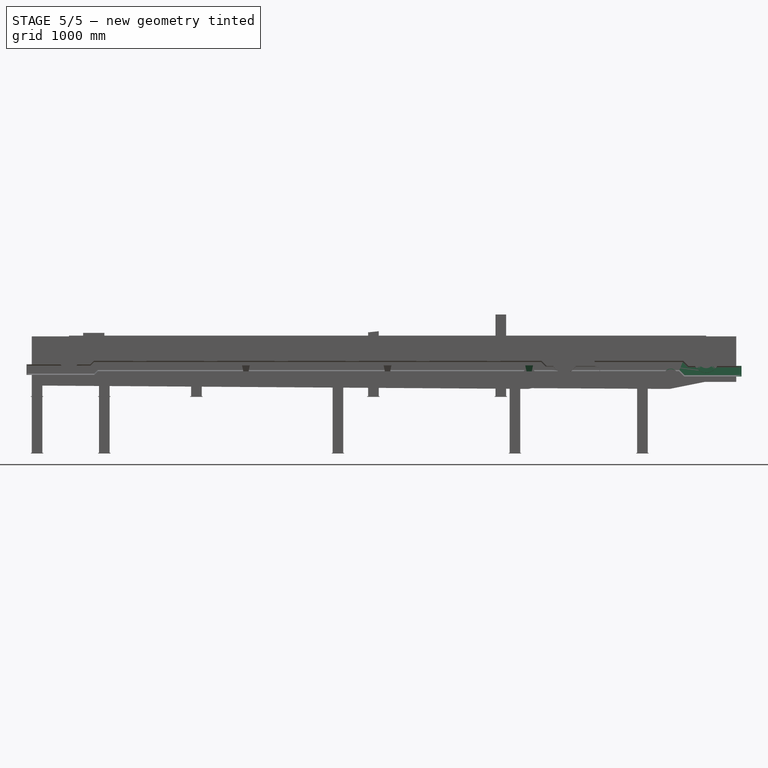
[diagram: stage 5 of 5 — front view after this stage's code; geometry added in this stage tinted green]
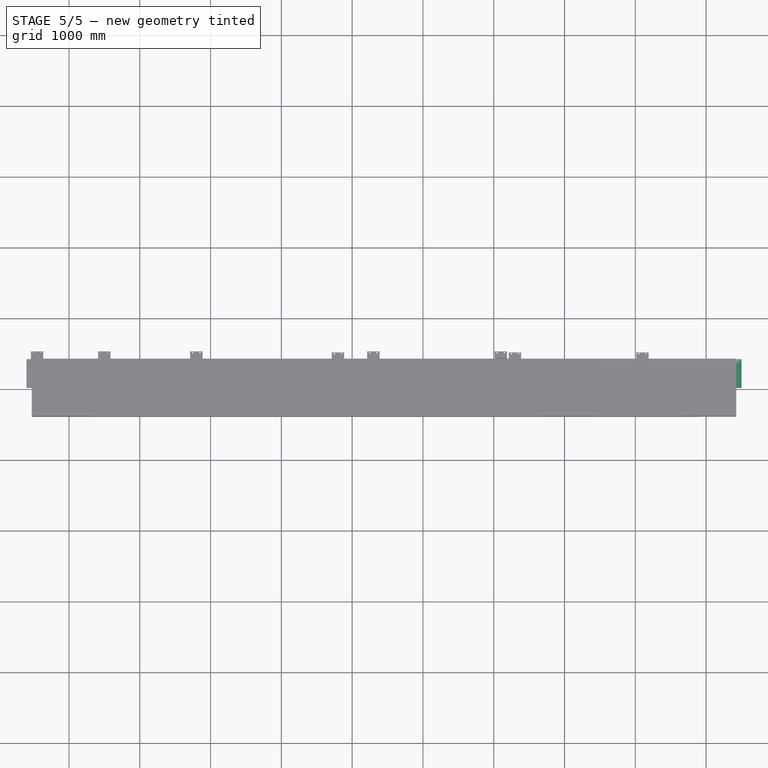
[diagram: stage 5 of 5 — top view after this stage's code; geometry added in this stage tinted green]
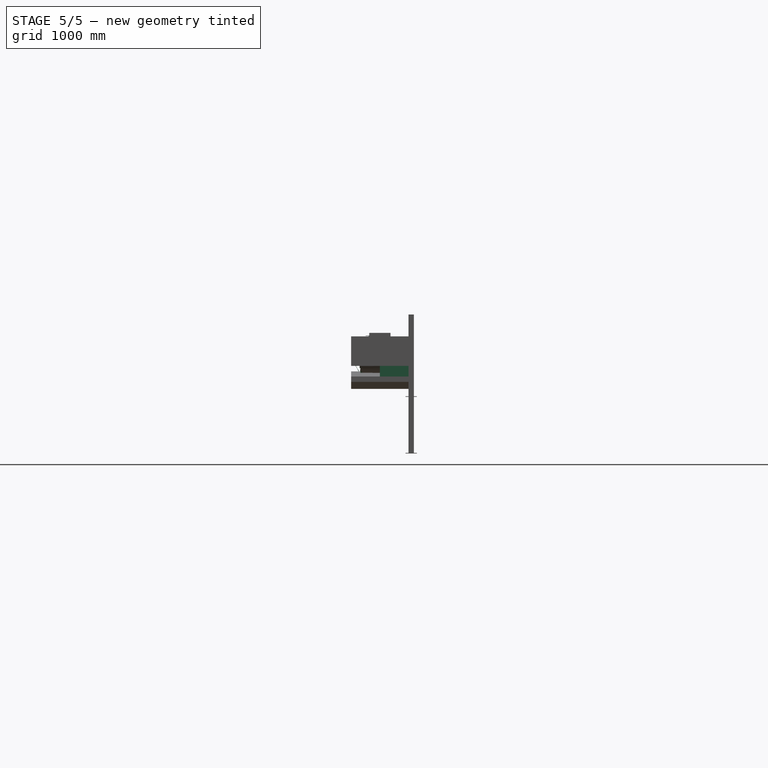
[diagram: stage 5 of 5 — right view after this stage's code; geometry added in this stage tinted green]
FEATURE [Spreadsheet::Sheet] Spreadsheet  label="shtBeltAssy"
  cells = C1='tailPulleyHIght Ht; D1='Inclination k(degree); E1='Array_n; F1='BeltWidth B0; A2='CenterDistance C0; B2(C0)=9000; C2(Ht)=1350; D2(k)=0; E2(n0)==C0 / 2500; F2=500; A3='BeltWidth B0; B3(B0)=500; C3=400; D3=450; E3=500; F3=600; G3=700; H3=750; I3=800; J3=900; K3=1000; A4='Belt b1; B4(b1)=180; C4=145; D4=165; E4=180; F4=210; G4=250; H4=265; I4=280; J4=315; K4=345; A5='Belt b2; B5(b2)=160; C5==(C3 - C4) / 2; D5==(D3 - D4) / 2; E5==(E3 - E4) / 2; F5==(F3 - F4) / 2; G5==(G3 - G4) / 2; H5==(H3 - H4) / 2; I5==(I3 - I4) / 2; J5==(J3 - J4) / 2; K5==(K3 - K4) / 2; A6='BeltThickness t0; B6(t0)=10; C6=10; D6=10; E6=10; F6=10; G6=10; H6=10; I6=10; J6=10; K6=10; A7='HeadPullyDia D0; B7(D0)=360; C7=300; D7=300; E7=360; F7=360; G7=360; H7=460; I7=460; J7=520; K7=520; A8='TailPullyDia d1; B8(d1)=300; C8=260; D8=260; E8=300; F8=300; G8=300; H8=390; I8=390; J8=440; K8=440; A9='SnapPullyDia d2; B9(d2)=200; C9=200; D9=200; E9=200; F9=200; G9=200; H9=200; I9=200; J9=200; K9=200; A10='SnapPully Ls; B10(Ls)=500; C10=400; D10=400; E10=400; F10=500; G10=500; H10=500; I10=500; J10=500; K10=500; A11='SnapPully h0; B11(h0)=180; C11=180; D11=180; E11=160; F11=180; G11=180; H11=180; I11=180; J11=180; K11=180; A12='hontaihaba W; B12(W0)=810; C12=710; D12=760; E12=810; F12=910; G12=910; H12=910; I12=910; J12=910; K12=910; A13='hontai _h; B13=103.5; C13=103.5; D13=103.5; E13=103.5; F13=103.5; G13=103.5; H13=103.5; I13=103.5; J13=103.5; K13=103.5; A14='hontai_z; B14=16; C14=16; D14=16; E14=16; F14=16; G14=16; H14=16; I14=16; J14=16; K14=16; A15='takeup_x; B15=-403.47; C15=-403.47; D15=-403.47; E15=-403.47; F15=-403.47; G15=-403.47; H15=-403.47; I15=-403.47; J15=-403.47; K15=-403.47; A16='takeup_y; B16=-362.8; C16=-362.8; D16=-362.8; E16=-362.8; F16=-410; G16=-410; H16=-410; I16=-410; J16=-410; K16=-410; A17='takeup_z; B17=-87; C17=-87; D17=-87; E17=-87; F17=-57; G17=-57; H17=-57; I17=-57; J17=-57; K17=-57; A18='carrierPitch  cp; B18=1000; A19='returnPitch rp; B19=1500; A20='outletL; B20(outletL)=50; A21='outletK; B21(outletK)=0; A22='insertX; B22(insertX)=300; A23='insertK; B23(insertK)=0
FEATURE [Part::FeaturePython] CPM2_4145  # WARN: FeaturePython — macro-defined, semantics opaque (R4)
  A = 550
  B1 = 500
  B2 = 600
  C = 70
  D = 360
  D1 = 356
  D2 = 228
  D3 = 278
  E = 170
  F = 0
  G1 = 30
  G2 = 30
  H = 33
  L = 863
  M = 210
  N1 = 60
  N2 = 60
  P = 75
  Placement = pos=(9000,0,-30) rot=(0,0,1;1.5708rad)
  R = 20
  a = 11
  b = 11
  d = 18
  key = 5
  expr: .Placement.Base.x = Spreadsheet.C0
FEATURE [Sketcher::SketchObject] Sketch007
  ArcFitTolerance = 0
  FullyConstrained = true
  MakeInternals = false
  MapMode = 5
  Placement = pos=(0,0,14) rot=(1,0,0;1.5708rad)
  expr: Constraints[11] = Spreadsheet.C0 + 1000
  sketch-geometry (5):
    g0: LineSegment StartX=-600 StartY=-99 StartZ=0 EndX=250 EndY=-99 EndZ=0
    g1: LineSegment StartX=250 StartY=-99 StartZ=0 EndX=309 EndY=-40 EndZ=0
    g2: LineSegment StartX=309 StartY=-40 StartZ=0 EndX=8728 EndY=-40 EndZ=0
    g3: LineSegment StartX=8728 StartY=-40 StartZ=0 EndX=8800 EndY=-112 EndZ=0
    g4: LineSegment StartX=8800 StartY=-112 StartZ=0 EndX=10000 EndY=-112 EndZ=0
  constraints (16):
    c: Horizontal(g0)
    c: Coincident(g0,g1)
    c: Coincident(g1,g2)
    c: Horizontal(g2)
    c: Coincident(g2,g3)
    c: Coincident(g3,g4)
    c: Horizontal(g4)
    c: DistanceX(g0,g-1) = 600
    c: Angle(g1,g0) = 2.35619
    c: DistanceX(g-1,g0) = 250
    c: Angle(g4,g3) = 2.35619
    c: DistanceX(g-1,g4) = 10000
    c: DistanceX(g4,g4) = 1200
    c: DistanceY(g0,g-1) = 99
    c: DistanceY(g0,g1) = 59
    c: DistanceY(g-1,g3) = -112
FEATURE [Part::Feature] ChannelSteel001
  Placement = pos=(-600,-2.2e-14,-239) rot=(0,0,1;0rad)
  shape: bbox 2e-07 x 75 x 150 mm, 0 faces, 0 solids (baked)
FEATURE [Part::FeaturePython] BendPulley  # WARN: FeaturePython — macro-defined, semantics opaque (R4)
  A = 50
  B = 103.5
  C = 600
  D = 200
  E = 0
  L = 550
  Placement = pos=(8500,1.79e-13,-250.18) rot=(0,0,-1;1.5708rad)
  d1 = 50
  d2 = 45
  d3 = 0
  t1 = 9
  t2 = 9
  t3 = 8
  t4 = 8
  expr: .Placement.Base.x = Spreadsheet.C0 - 500
FEATURE [Sketcher::SketchObject] Sketch012
  ArcFitTolerance = 0
  AttachmentSupport = -> [Sweep001]
  FullyConstrained = true
  MakeInternals = false
  MapMode = 5
  Placement = pos=(0,-405,-89) rot=(0,0,1;0rad)
  sketch-geometry (4):
    g0: LineSegment StartX=-480 StartY=8 StartZ=0 EndX=185 EndY=8 EndZ=0
    g1: LineSegment StartX=185 StartY=8 StartZ=0 EndX=185 EndY=83 EndZ=0
    g2: LineSegment StartX=185 StartY=83 StartZ=0 EndX=-480 EndY=83 EndZ=0
    g3: LineSegment StartX=-480 StartY=83 StartZ=0 EndX=-480 EndY=8 EndZ=0
  constraints (12):
    c: Coincident(g0,g1)
    c: Coincident(g1,g2)
    c: Coincident(g2,g3)
    c: Coincident(g3,g0)
    c: Horizontal(g0)
    c: Horizontal(g2)
    c: Vertical(g1)
    c: Vertical(g3)
    c: DistanceY(g1,g1) = 75
    c: DistanceY(g-1,g0) = 8
    c: DistanceX(g-1,g0) = 185
    c: DistanceX(g0,g0) = 665
FEATURE [Sketcher::SketchObject] Sketch013
  ArcFitTolerance = 0
  AttachmentSupport = -> [Sweep001]
  FullyConstrained = false
  MakeInternals = false
  MapMode = 5
  Placement = pos=(0,-405,-112) rot=(0,0,1;0rad)
  expr: Constraints[9] = Spreadsheet.C0
  sketch-geometry (5):
    g0: LineSegment StartX=8885 StartY=16.2326 StartZ=0 EndX=9115 EndY=16.2326 EndZ=0
    g1: LineSegment StartX=9115 StartY=16.2326 StartZ=0 EndX=9115 EndY=96.2326 EndZ=0
    g2: LineSegment StartX=9115 StartY=96.2326 StartZ=0 EndX=8885 EndY=96.2326 EndZ=0
    g3: LineSegment StartX=8885 StartY=96.2326 StartZ=0 EndX=8885 EndY=16.2326 EndZ=0
    g4: LineSegment [constr] StartX=9000 StartY=284.577 StartZ=0 EndX=9000 EndY=-153.677 EndZ=0
  constraints (13):
    c: Coincident(g0,g1)
    c: Coincident(g1,g2)
    c: Coincident(g2,g3)
    c: Coincident(g3,g0)
    c: Horizontal(g0)
    c: Horizontal(g2)
    c: Vertical(g1)
    c: Vertical(g3)
    c: Vertical(g4)
    c: DistanceX(g-2,g4) = 9000
    c: DistanceY(g1,g1) = 80
    c: DistanceX(g0,g0) = 230
    c: DistanceX(g4,g0) = 115
FEATURE [Part::Extrusion] Extrude004
  Base = -> Sketch013
  Dir = (0,0,1)
  DirMode = 2
  FaceMakerClass = Part::FaceMakerBullseye
  FaceMakerMode = 3
  LengthFwd = 12
  LengthRev = 0
  Solid = true
  Symmetric = false
FEATURE [Sketcher::SketchObject] Sketch014
  ArcFitTolerance = 0
  AttachmentSupport = -> [Sweep001]
  FullyConstrained = false
  MakeInternals = false
  MapMode = 5
  Placement = pos=(0,-405,-189) rot=(1,0,0;3.14159rad)
  expr: Constraints[13] = Spreadsheet.C0 - 500
  sketch-geometry (5):
    g0: LineSegment StartX=8400 StartY=-9 StartZ=0 EndX=8600 EndY=-9 EndZ=0
    g1: LineSegment StartX=8600 StartY=-9 StartZ=0 EndX=8600 EndY=-79 EndZ=0
    g2: LineSegment StartX=8600 StartY=-79 StartZ=0 EndX=8400 EndY=-79 EndZ=0
    g3: LineSegment StartX=8400 StartY=-79 StartZ=0 EndX=8400 EndY=-9 EndZ=0
    g4: LineSegment [constr] StartX=8500 StartY=33.7597 StartZ=0 EndX=8500 EndY=-194.785 EndZ=0
  constraints (14):
    c: Coincident(g0,g1)
    c: Coincident(g1,g2)
    c: Coincident(g2,g3)
    c: Coincident(g3,g0)
    c: Horizontal(g0)
    c: Horizontal(g2)
    c: Vertical(g1)
    c: Vertical(g3)
    c: Vertical(g4)
    c: DistanceX(g0,g0) = 200
    c: DistanceY(g3,g3) = 70
    c: DistanceX(g4,g0) = 100
    c: DistanceY(g-1,g0) = -9
    c: DistanceX(g-1,g4) = 8500
FEATURE [Part::Extrusion] Extrude005
  Base = -> Sketch014
  Dir = (0,0,-1)
  DirMode = 2
  FaceMakerClass = Part::FaceMakerBullseye
  FaceMakerMode = 3
  LengthFwd = 30
  LengthRev = 0
  Solid = true
  Symmetric = false
FEATURE [Part::FeaturePython] ChannelSteel002  # WARN: FeaturePython — macro-defined, semantics opaque (R4)
  B = 75
  H = 150
  L = 1000
  Placement = pos=(9500,0,-112) rot=(0,1,0;3.14159rad)
  Solid = false
  g0 = 7.85
  mass = 0
  size = 3
  standard = SS
  t1 = 6.5
  t2 = 10
  expr: .Placement.Base.x = Spreadsheet.C0 + 500
FEATURE [Part::Extrusion] Extrude007
  Base = -> ChannelSteel002
  Dir = (0,1,0)
  DirMode = 2
  FaceMakerClass = Part::FaceMakerBullseye
  FaceMakerMode = 3
  LengthFwd = 405
  LengthRev = 0
  Reversed = true
  Solid = false
  Symmetric = false
  expr: LengthFwd = Spreadsheet.W0 / 2
FEATURE [Part::Mirroring] Part__Mirroring001  label="UCP208FC (Mirror #3)"
  Base = (0,0,0)
  Normal = (0,1,0)
  Source = -> Part__Feature003
FEATURE [Part::MultiFuse] Fusion001
  Shapes = -> [Fusion,Extrude003]
FEATURE [Part::MultiFuse] Fusion002
  Refine = true
  Shapes = -> [Fusion001,Extrude007]
FEATURE [Part::MultiFuse] Fusion003
  Shapes = -> [Fusion002,Extrude004]
FEATURE [Part::MultiFuse] Fusion004
  Refine = true
  Shapes = -> [Fusion003,Extrude005]
FEATURE [App::Part] Part  label="本体"
  Group = -> [Fusion,ChannelSteel002,ChannelSteel,ChannelSteel001,Sweep001,Sketch011,Sketch012,Extrude005,Extrude006,Extrude003,Extrude007,Extrude004,Sketch013,Sketch014,Fusion002,Fusion003,Fusion001,Fusion004]
  Origin = -> Origin006
FEATURE [Part::Mirroring] Mirror  label="本体 (mirrored)"
  Base = (-1000,0,0)
  Normal = (0,-1,0)
  Source = -> Part
FEATURE [Part::Feature] Part__Feature  label="UCT204-Nipple"
  Placement = pos=(402.082,85.3824,0) rot=(0.519988,-0.677661,0.519988;1.95044rad)
  shape: bbox 18.99 x 12.27 x 15.73 mm, 44 faces (baked)
FEATURE [Part::Feature] Part__Feature001  label="UCT204-Housing2"
  Placement = pos=(435,77,0) rot=(0,0,1;0rad)
  shape: bbox 145.2 x 120 x 60 mm, 83 faces (baked)
FEATURE [Part::Feature] Part__Feature002  label="UCTL204-300-Frame"
  Placement = pos=(285,77,0) rot=(0,0,1;0rad)
  shape: bbox 630 x 146 x 56.5 mm, 312 faces (baked)
FEATURE [App::Part] UCTL204J_300_0  label="UCTL204J-300-0"
  Group = -> [Part__Feature,Part__Feature001,Part__Feature002]
  Origin = -> Origin008
FEATURE [App::Part] _______________________________20_v1  label="テークアップユニット_20 v1"
  Group = -> [UCTL204J_300_0]
  Origin = -> Origin001
  Placement = pos=(-435,-360,-77) rot=(1,0,0;1.5708rad)
FEATURE [Part::FeaturePython] Take_upPulley001  # WARN: FeaturePython — macro-defined, semantics opaque (R4)
  A = 50
  B = 50
  C = 668
  D = 300
  E = 0
  L = 550
  Placement = pos=(0,0,0) rot=(0,0,-1;1.5708rad)
  d1 = 30
  d2 = 20
  d3 = 0
  t1 = 9
  t2 = 9
  t3 = 8
  t4 = 8
FEATURE [Sketcher::SketchObject] Sketch015
  ArcFitTolerance = 0
  FullyConstrained = true
  MakeInternals = false
  sketch-geometry (10):
    g0: LineSegment StartX=-600 StartY=-625 StartZ=0 EndX=-600 EndY=625 EndZ=0
    g1: LineSegment StartX=-600 StartY=625 StartZ=0 EndX=600 EndY=625 EndZ=0
    g2: LineSegment StartX=600 StartY=625 StartZ=0 EndX=600 EndY=-625 EndZ=0
    g3: LineSegment StartX=600 StartY=-625 StartZ=0 EndX=-600 EndY=-625 EndZ=0
    g4: GeomPoint [constr] X=0 Y=0 Z=0
    g5: LineSegment StartX=-525 StartY=-550 StartZ=0 EndX=-525 EndY=550 EndZ=0
    g6: LineSegment StartX=-525 StartY=550 StartZ=0 EndX=525 EndY=550 EndZ=0
    g7: LineSegment StartX=525 StartY=550 StartZ=0 EndX=525 EndY=-550 EndZ=0
    g8: LineSegment StartX=525 StartY=-550 StartZ=0 EndX=-525 EndY=-550 EndZ=0
    g9: GeomPoint [constr] X=0 Y=0 Z=0
  constraints (24):
    c: Coincident(g0,g1)
    c: Coincident(g1,g2)
    c: Coincident(g2,g3)
    c: Coincident(g3,g0)
    c: Horizontal(g1)
    c: Horizontal(g3)
    c: Vertical(g0)
    c: Vertical(g2)
    c: Symmetric(g1,g0,g4)
    c: Coincident(g4,g-1)
    c: Distance(g0) = 1250
    c: Distance(g4,g0) = 600
    c: Coincident(g5,g6)
    c: Coincident(g6,g7)
    c: Coincident(g7,g8)
    c: Coincident(g8,g5)
    c: Horizontal(g6)
    c: Horizontal(g8)
    c: Vertical(g5)
    c: Vertical(g7)
    c: Symmetric(g6,g5,g9)
    c: Coincident(g9,g4)
    c: Distance(g5,g0) = 75
    c: Distance(g5,g1) = 75
FEATURE [Part::Mirroring] Mirror001  label="テークアップユニット_20 v1 (mirrored)"
  Base = (-400,0,0)
  Normal = (0,-1,0)
  Source = -> _______________________________20_v1
FEATURE [Part::Compound] Compound  label="takeUp"
  Links = -> [Mirror001,_______________________________20_v1]
FEATURE [App::Part] Part004  label="pulley"
  Group = -> [Take_upPulley001]
  Origin = -> Origin003
  Placement = pos=(0,0,0) rot=(0,1,0;2.1293rad)
FEATURE [Spreadsheet::Sheet] Spreadsheet001  label="Spreadsheet_takeup"
  cells = A1='beltWidth; B1='takeup d0; C1='d1=d0+10; D1='pulley D0; E1='puller L0; F1='puller C0; G1='puller B0; H1='takeup Y; A2(W0)=600; B2(d0)=20; C2(d1)==d0 + 10; D2(D0)=300; E2(L0)=650; F2(C0)=768; G2(B0)=50; H2(Y)=410; A3=400; B3=20; C3==d0 + 10; D3=300; E3=450; F3=568; G3=50; H3=310; A4=450; B4=20; C4==d0 + 10; D4=300; E4=500; F4=618; G4=50; H4=335; A5=500; B5=20; C5==d0 + 10; D5=300; E5=550; F5=668; G5=50; H5=360; A6=600; B6=20; C6==d0 + 10; D6=300; E6=650; F6=768; G6=50; H6=410; A7=700; B7=20; C7==d0 + 10; D7=300; E7=750; F7=868; G7=50; H7=460; A8=750; B8=20; C8==d0 + 10; D8=300; E8=800; F8=918; G8=50; H8=485; A9=800; B9=20; C9==d0 + 10; D9=300; E9=850; F9=968; G9=50; H9=510; A10=900; B10=20; C10==d0 + 10; D10=300; E10=950; F10=1068; G10=50; H10=560; A11=1000; B11=20; C11==d0 + 10; D11=300; E11=1050; F11=1168; G11=50; H11=610
FEATURE [App::Part] Part003  label="takeUpAssy20d"
  Group = -> [_______________________________20_v1,Mirror001,Compound,Sketch015,Part004,Spreadsheet001]
  Origin = -> Origin002
FEATURE [App::Part] Part005  label="bendPulley"
  Group = -> [BendPulley,Part__Feature003,Part__Mirroring001]
  Origin = -> Origin009
  Placement = pos=(0,0,-8) rot=(0,0,1;0rad)
FEATURE [Sketcher::SketchObject] Sketch016
  ArcFitTolerance = 0
  FullyConstrained = true
  MakeInternals = false
  Placement = pos=(0,0,0) rot=(0.57735,0.57735,0.57735;2.0944rad)
  sketch-geometry (6):
    g0: LineSegment StartX=200 StartY=201 StartZ=0 EndX=206 EndY=201 EndZ=0
    g1: LineSegment StartX=206 StartY=201 StartZ=0 EndX=206 EndY=310 EndZ=0
    g2: LineSegment StartX=200 StartY=316 StartZ=0 EndX=200 EndY=201 EndZ=0
    g3: LineSegment StartX=250 StartY=316 StartZ=0 EndX=250 EndY=310 EndZ=0
    g4: LineSegment StartX=250 StartY=310 StartZ=0 EndX=206 EndY=310 EndZ=0
    g5: LineSegment StartX=200 StartY=316 StartZ=0 EndX=250 EndY=316 EndZ=0
  constraints (18):
    c: Coincident(g0,g1)
    c: Coincident(g2,g0)
    c: Horizontal(g0)
    c: Vertical(g1)
    c: Vertical(g2)
    c: DistanceX(g-2,g2) = 200
    c: Vertical(g3)
    c: Coincident(g3,g4)
    c: Horizontal(g4)
    c: Coincident(g1,g4)
    c: Coincident(g5,g2)
    c: Coincident(g5,g3)
    c: Horizontal(g5)
    c: DistanceY(g3,g3) = 6
    c: DistanceX(g5,g5) = 50
    c: DistanceX(g0,g0) = 6
    c: DistanceY(g2,g2) = 115
    c: DistanceY(g-1,g2) = 316
FEATURE [Part::Extrusion] Extrude010
  Base = -> Sketch016
  Dir = (1,0,0)
  DirMode = 2
  FaceMakerClass = Part::FaceMakerBullseye
  FaceMakerMode = 3
  LengthFwd = 9000
  LengthRev = 0
  Solid = true
  Symmetric = false
  expr: LengthFwd = Spreadsheet.C0
FEATURE [App::Part] Part008  label="skirt"
  Group = -> [Sketch016,Extrude010]
  Origin = -> Origin012
  Placement = pos=(0,-50,0) rot=(0,0,1;0rad)
FEATURE [Part::Mirroring] Mirror003  label="skirt001"
  Base = (-900,0,0)
  Normal = (0,-1,0)
  Source = -> Part008
FEATURE [App::Part] Part019  label="Post"
  Group = -> [Part018,Mirror004]
  Origin = -> Origin022
FEATURE [Part::Feature] Carrier_500
  Placement = pos=(1000,-395,0) rot=(0,0,1;1.5708rad)
  shape: bbox 190 x 790 x 240.8 mm, 128 faces, 3 solids (baked)
FEATURE [Part::FeaturePython] Array  label="carrier"  # Draft array (typed FeaturePython)
  AlwaysSyncPlacement = false
  Angle = 360
  ArrayType = 0
  Axis = (0,0,1)
  Base = -> Carrier_500
  Center = (0,0,0)
  Count = 7
  ExpandArray = false
  Fuse = false
  IntervalAxis = (0,0,0)
  IntervalX = (1000,0,0)
  IntervalY = (0,100,0)
  IntervalZ = (0,0,100)
  NumberCircles = 3
  NumberPolar = 5
  NumberX = 7
  NumberY = 1
  NumberZ = 1
  PlacementList = 7 placements: arithmetic series from (1000,-395,0) step (1000,0,0) to (7000,-395,0)
  RadialDistance = 50
  ScaleList = (7) [(1,1,1),(1,1,1),(1,1,1),(1,1,1),(1,1,1),(1,1,1),(1,1,1)]
  Symmetry = 1
  TangentialDistance = 25
  expr: NumberX = Spreadsheet.C0 / Spreadsheet.B18 - 2
FEATURE [Part::Feature] Self_Aligning_Carrier_500
  Placement = pos=(8000,0,-32) rot=(0,0,-1;1.5708rad)
  shape: bbox 298 x 790 x 376 mm, 205 faces, 4 solids (baked)
  expr: .Placement.Base.x = Spreadsheet.C0 - 1000
FEATURE [Part::Feature] Return_500
  Placement = pos=(2500,0,0) rot=(0,0,1;1.5708rad)
  shape: bbox 110 x 790 x 159.5 mm, 37 faces (baked)
FEATURE [Part::FeaturePython] Array001  label="returnArray"  # Draft array (typed FeaturePython)
  AlwaysSyncPlacement = false
  Angle = 360
  ArrayType = 0
  Axis = (0,0,1)
  Base = -> Return_500
  Center = (0,0,0)
  Count = 3
  ExpandArray = false
  Fuse = false
  IntervalAxis = (0,0,0)
  IntervalX = (2000,0,0)
  IntervalY = (0,100,0)
  IntervalZ = (0,0,100)
  NumberCircles = 3
  NumberPolar = 5
  NumberX = 3
  NumberY = 1
  NumberZ = 1
  Placement = pos=(0,2.551e-05,-210) rot=(0,0,1;0rad)
  PlacementList = 3 placements: arithmetic series from (2500,0,0) step (2000,0,0) to (6500,0,0)
  RadialDistance = 50
  ScaleList = (3) [(1,1,1),(1,1,1),(1,1,1)]
  Symmetry = 1
  TangentialDistance = 25
  expr: NumberX = (Spreadsheet.C0 - 3000) / 2000
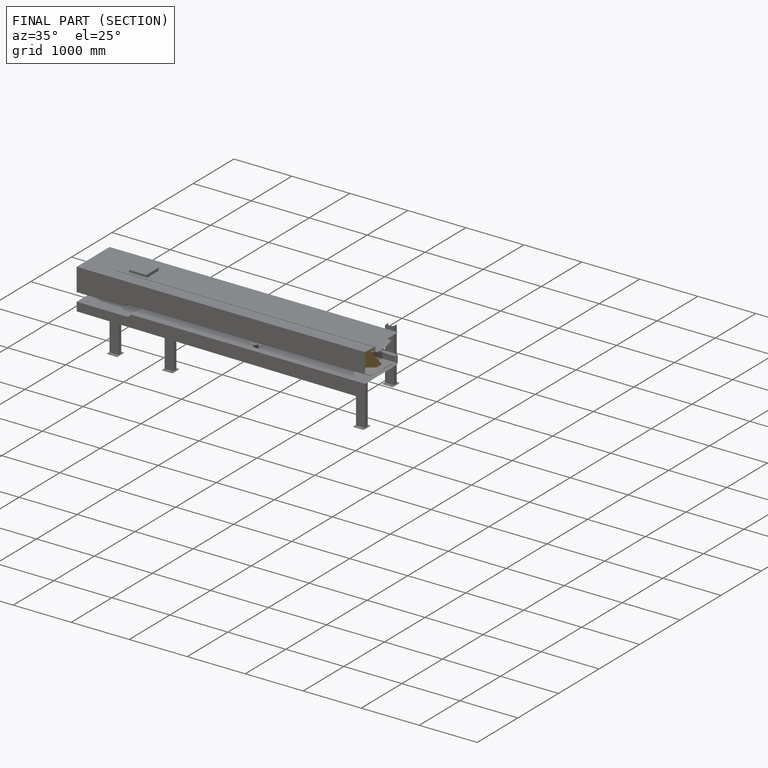
[diagram: finished part — half-section view (interior)]
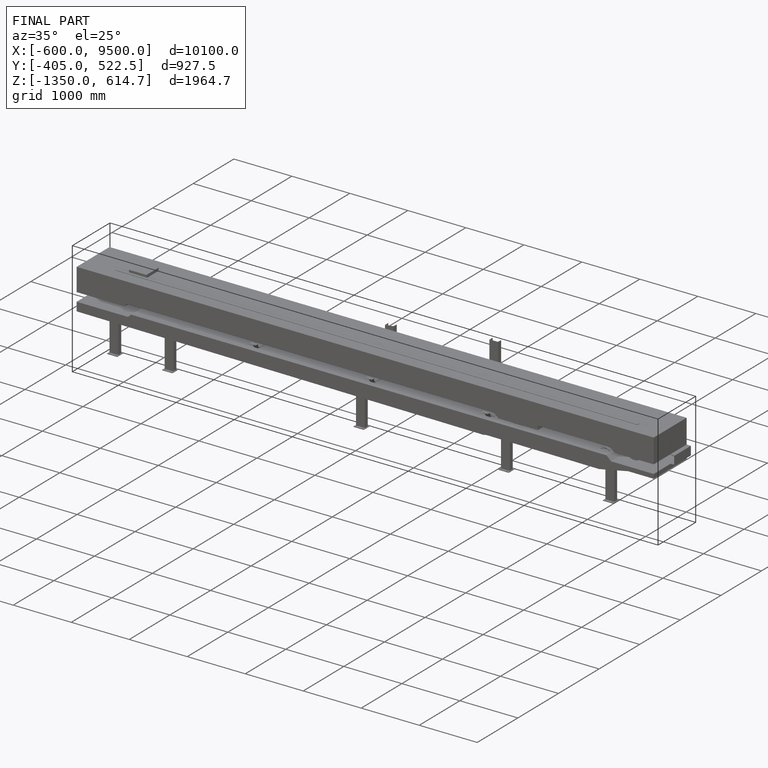
[diagram: finished part — iso view with bounding-box wireframe]
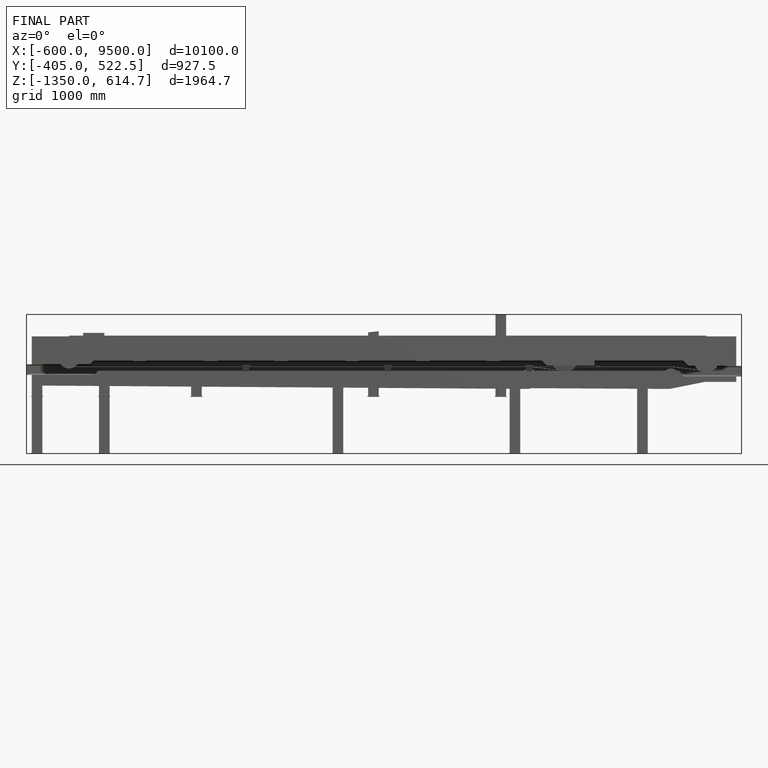
[diagram: finished part — front view with bounding-box wireframe]
